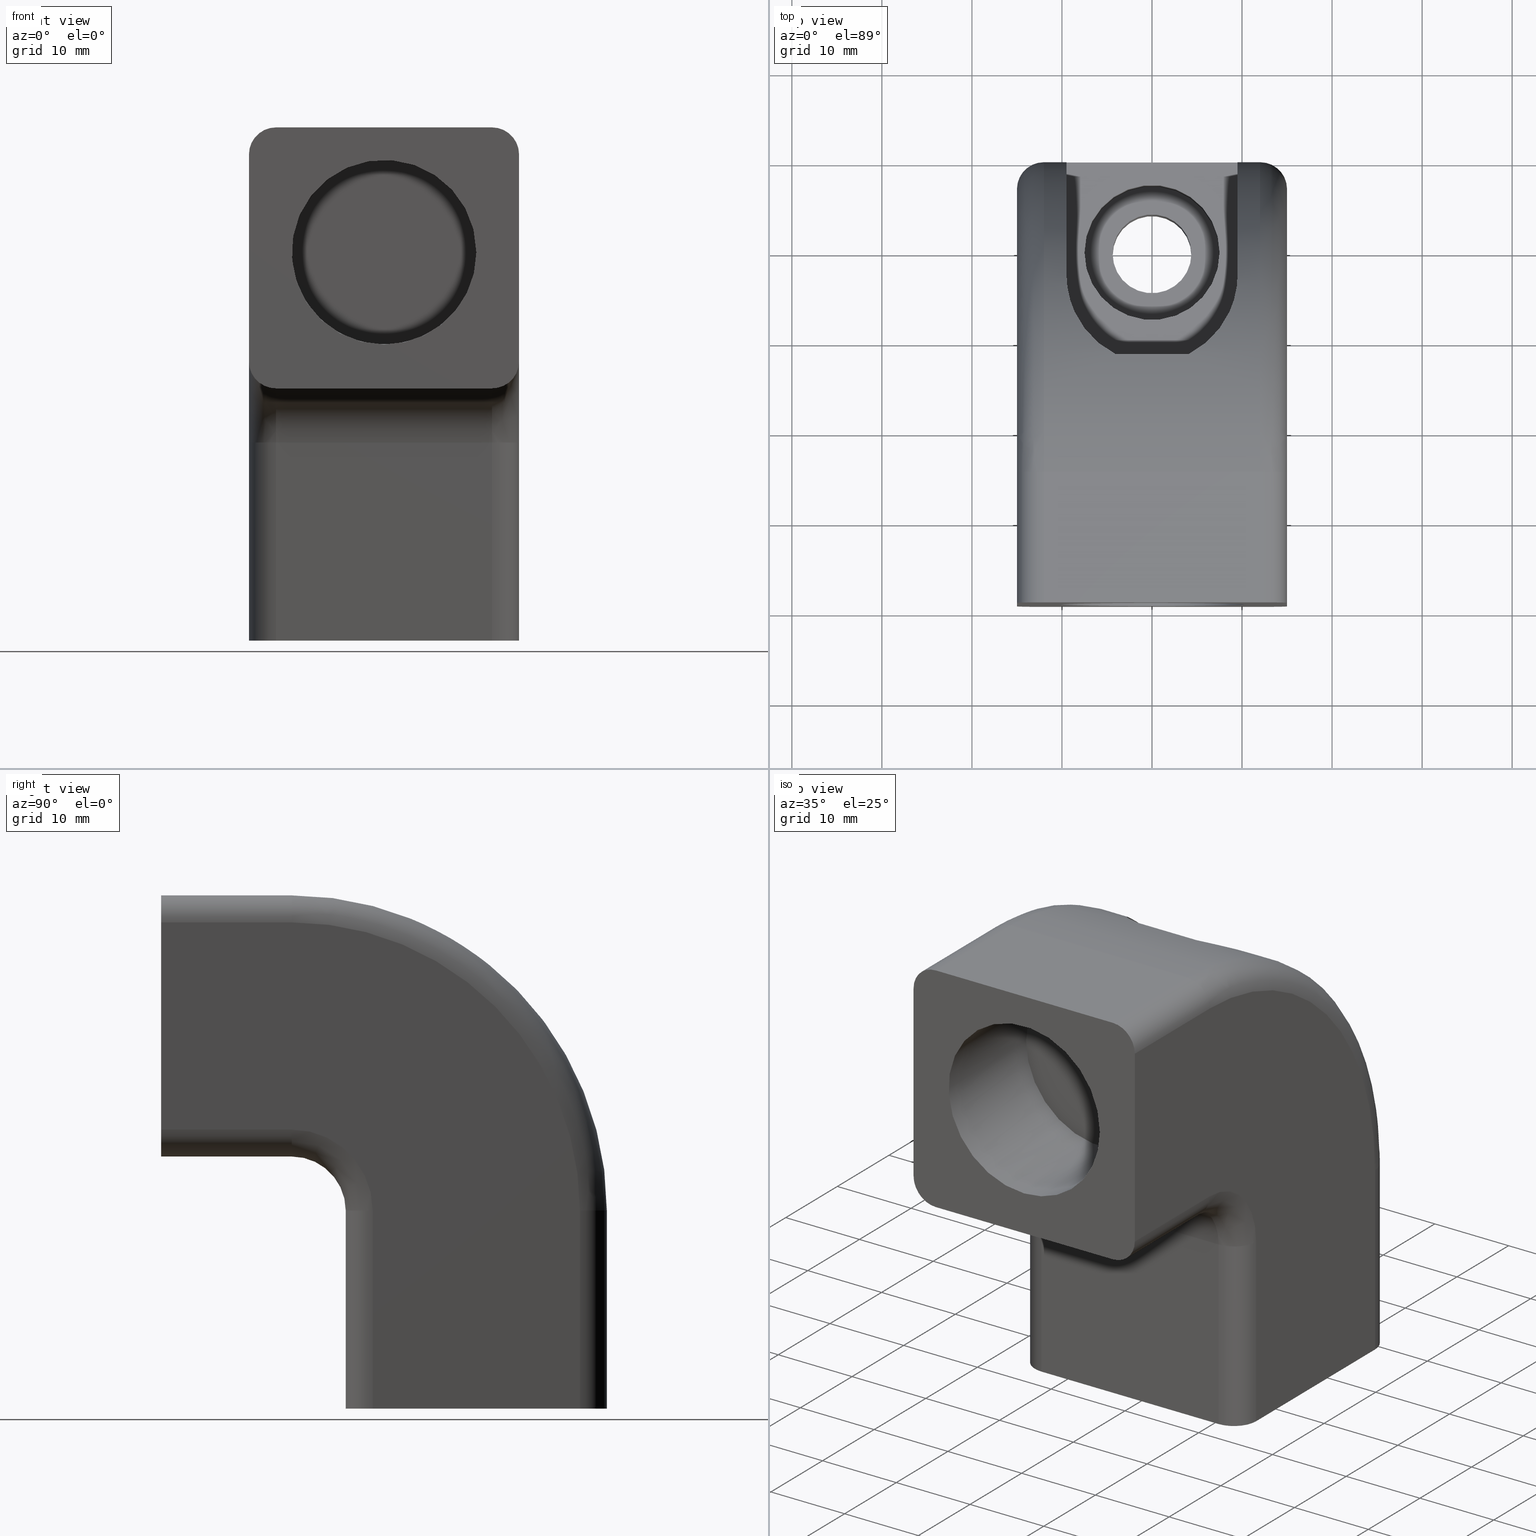
[diagram: canonical four-view strip — front | top / right | iso, engineering-drawing reading convention]
A machine part, canonical four-view strip (front | top / right | iso — engineering-drawing reading convention). The complete STEP part file that produces these views, byte-faithful:
ISO-10303-21;
HEADER;
/* Generated by software containing ST-Developer
 * from STEP Tools, Inc. (www.steptools.com) 
 */

FILE_DESCRIPTION(
/* description */ ('SUPPORTO  MANIGLIA PER TUBO D.20'),
/* implementation_level */ '2;1');

FILE_NAME(
/* name */ 
'Q:\\Catalogo\\2_Accessori Dierre\\Per Download Web\\CATALOGO ACCESSOR
I PER RIPARI\\PAGINA 64\\CMNAA0000002.stp',
/* time_stamp */ '2018-01-31T14:25:36+01:00',
/* author */ ('fzagni'),
/* organization */ (''),
/* preprocessor_version */ 'ST-DEVELOPER v16.1',
/* originating_system */ 'Autodesk Inventor 2016',
/* authorisation */ '');

FILE_SCHEMA (('AUTOMOTIVE_DESIGN { 1 0 10303 214 3 1 1 }'));
ENDSEC;

DATA;
#10=MECHANICAL_DESIGN_GEOMETRIC_PRESENTATION_REPRESENTATION('',(#13),#1311);
#11=SHAPE_REPRESENTATION_RELATIONSHIP('SRR','None',#1320,#12);
#12=ADVANCED_BREP_SHAPE_REPRESENTATION('',(#14),#1310);
#13=STYLED_ITEM('',(#1329),#14);
#14=MANIFOLD_SOLID_BREP('None',#575);
#15=B_SPLINE_SURFACE_WITH_KNOTS('',3,3,((#1000,#1001,#1002,#1003,#1004,
#1005,#1006,#1007,#1008,#1009,#1010),(#1011,#1012,#1013,#1014,#1015,#1016,
#1017,#1018,#1019,#1020,#1021),(#1022,#1023,#1024,#1025,#1026,#1027,#1028,
#1029,#1030,#1031,#1032),(#1033,#1034,#1035,#1036,#1037,#1038,#1039,#1040,
#1041,#1042,#1043),(#1044,#1045,#1046,#1047,#1048,#1049,#1050,#1051,#1052,
#1053,#1054),(#1055,#1056,#1057,#1058,#1059,#1060,#1061,#1062,#1063,#1064,
#1065),(#1066,#1067,#1068,#1069,#1070,#1071,#1072,#1073,#1074,#1075,#1076)),
 .UNSPECIFIED.,.F.,.F.,.F.,(4,1,1,1,4),(4,1,1,1,1,1,1,1,4),(-0.00636065542696376,
1.17054193209677,2.34108386419354,3.51162579629031,4.68216772838708),(-0.00636065542696376,
6.62756652958003,13.2551330591601,19.8826995887401,26.5102661183201,33.1378326479002,
39.7653991774802,46.3929657070602,53.0268928920672),.UNSPECIFIED.);
#16=B_SPLINE_SURFACE_WITH_KNOTS('',3,3,((#1077,#1078,#1079,#1080,#1081,
#1082,#1083,#1084,#1085,#1086,#1087),(#1088,#1089,#1090,#1091,#1092,#1093,
#1094,#1095,#1096,#1097,#1098),(#1099,#1100,#1101,#1102,#1103,#1104,#1105,
#1106,#1107,#1108,#1109),(#1110,#1111,#1112,#1113,#1114,#1115,#1116,#1117,
#1118,#1119,#1120),(#1121,#1122,#1123,#1124,#1125,#1126,#1127,#1128,#1129,
#1130,#1131),(#1132,#1133,#1134,#1135,#1136,#1137,#1138,#1139,#1140,#1141,
#1142),(#1143,#1144,#1145,#1146,#1147,#1148,#1149,#1150,#1151,#1152,#1153)),
 .UNSPECIFIED.,.F.,.F.,.F.,(4,1,1,1,4),(4,1,1,1,1,1,1,1,4),(0.,1.17054193209677,
2.34108386419354,3.51162579629031,4.68216772838708),(0.,1.40983897744393,
2.81967795488786,4.22951693233179,5.63935590977572,7.04919488721965,8.45903386466358,
9.86887284210751,11.2787118195514),.UNSPECIFIED.);
#17=B_SPLINE_SURFACE_WITH_KNOTS('',3,3,((#1154,#1155,#1156,#1157,#1158,
#1159,#1160,#1161,#1162,#1163,#1164),(#1165,#1166,#1167,#1168,#1169,#1170,
#1171,#1172,#1173,#1174,#1175),(#1176,#1177,#1178,#1179,#1180,#1181,#1182,
#1183,#1184,#1185,#1186),(#1187,#1188,#1189,#1190,#1191,#1192,#1193,#1194,
#1195,#1196,#1197),(#1198,#1199,#1200,#1201,#1202,#1203,#1204,#1205,#1206,
#1207,#1208),(#1209,#1210,#1211,#1212,#1213,#1214,#1215,#1216,#1217,#1218,
#1219),(#1220,#1221,#1222,#1223,#1224,#1225,#1226,#1227,#1228,#1229,#1230)),
 .UNSPECIFIED.,.F.,.F.,.F.,(4,1,1,1,4),(4,1,1,1,1,1,1,1,4),(-0.00636065542696376,
1.17054193209677,2.34108386419354,3.51162579629031,4.68216772838708),(-0.00636065542696376,
6.62756652958003,13.2551330591601,19.8826995887401,26.5102661183201,33.1378326479002,
39.7653991774802,46.3929657070602,53.0268928920672),.UNSPECIFIED.);
#18=B_SPLINE_SURFACE_WITH_KNOTS('',3,3,((#1231,#1232,#1233,#1234,#1235,
#1236,#1237,#1238,#1239,#1240,#1241),(#1242,#1243,#1244,#1245,#1246,#1247,
#1248,#1249,#1250,#1251,#1252),(#1253,#1254,#1255,#1256,#1257,#1258,#1259,
#1260,#1261,#1262,#1263),(#1264,#1265,#1266,#1267,#1268,#1269,#1270,#1271,
#1272,#1273,#1274),(#1275,#1276,#1277,#1278,#1279,#1280,#1281,#1282,#1283,
#1284,#1285),(#1286,#1287,#1288,#1289,#1290,#1291,#1292,#1293,#1294,#1295,
#1296),(#1297,#1298,#1299,#1300,#1301,#1302,#1303,#1304,#1305,#1306,#1307)),
 .UNSPECIFIED.,.F.,.F.,.F.,(4,1,1,1,4),(4,1,1,1,1,1,1,1,4),(0.,1.17054193209677,
2.34108386419354,3.51162579629031,4.68216772838708),(0.,1.40983897744393,
2.81967795488786,4.22951693233179,5.63935590977572,7.04919488721965,8.45903386466358,
9.86887284210751,11.2787118195514),.UNSPECIFIED.);
#19=FACE_BOUND('',#161,.T.);
#20=FACE_BOUND('',#166,.T.);
#21=FACE_BOUND('',#168,.T.);
#22=FACE_BOUND('',#170,.T.);
#23=FACE_BOUND('',#172,.T.);
#24=FACE_BOUND('',#175,.T.);
#25=FACE_BOUND('',#177,.T.);
#26=FACE_BOUND('',#180,.T.);
#27=FACE_BOUND('',#181,.T.);
#28=B_SPLINE_CURVE_WITH_KNOTS('',3,(#833,#834,#835,#836,#837,#838,#839,
#840),.UNSPECIFIED.,.F.,.F.,(4,2,2,4),(0.45346056403926,0.742260229767861,
1.19001307839587,1.63776592702387),.UNSPECIFIED.);
#29=B_SPLINE_CURVE_WITH_KNOTS('',3,(#863,#864,#865,#866,#867,#868,#869,
#870),.UNSPECIFIED.,.F.,.F.,(4,2,2,4),(-3.19821510705588,-2.90941544132727,
-2.46166259269927,-2.01390974407126),.UNSPECIFIED.);
#30=LINE('',#831,#68);
#31=LINE('',#844,#69);
#32=LINE('',#849,#70);
#33=LINE('',#852,#71);
#34=LINE('',#856,#72);
#35=LINE('',#857,#73);
#36=LINE('',#862,#74);
#37=LINE('',#873,#75);
#38=LINE('',#877,#76);
#39=LINE('',#900,#77);
#40=LINE('',#904,#78);
#41=LINE('',#908,#79);
#42=LINE('',#912,#80);
#43=LINE('',#918,#81);
#44=LINE('',#919,#82);
#45=LINE('',#923,#83);
#46=LINE('',#927,#84);
#47=LINE('',#931,#85);
#48=LINE('',#935,#86);
#49=LINE('',#939,#87);
#50=LINE('',#942,#88);
#51=LINE('',#945,#89);
#52=LINE('',#947,#90);
#53=LINE('',#951,#91);
#54=LINE('',#954,#92);
#55=LINE('',#957,#93);
#56=LINE('',#959,#94);
#57=LINE('',#963,#95);
#58=LINE('',#966,#96);
#59=LINE('',#971,#97);
#60=LINE('',#972,#98);
#61=LINE('',#975,#99);
#62=LINE('',#978,#100);
#63=LINE('',#983,#101);
#64=LINE('',#985,#102);
#65=LINE('',#990,#103);
#66=LINE('',#991,#104);
#67=LINE('',#994,#105);
#68=VECTOR('',#654,29.2213151776324);
#69=VECTOR('',#657,34.4607605939007);
#70=VECTOR('',#664,8.07270363925181);
#71=VECTOR('',#667,13.);
#72=VECTOR('',#670,13.);
#73=VECTOR('',#671,19.);
#74=VECTOR('',#676,29.2213151776324);
#75=VECTOR('',#679,2.00000000000004);
#76=VECTOR('',#684,2.00000000000004);
#77=VECTOR('',#713,23.);
#78=VECTOR('',#716,24.);
#79=VECTOR('',#719,23.);
#80=VECTOR('',#722,24.);
#81=VECTOR('',#729,14.5);
#82=VECTOR('',#730,14.5);
#83=VECTOR('',#733,23.);
#84=VECTOR('',#736,24.);
#85=VECTOR('',#739,23.);
#86=VECTOR('',#742,24.);
#87=VECTOR('',#747,22.);
#88=VECTOR('',#750,22.);
#89=VECTOR('',#753,22.);
#90=VECTOR('',#754,22.);
#91=VECTOR('',#759,14.5);
#92=VECTOR('',#762,14.5);
#93=VECTOR('',#765,14.5);
#94=VECTOR('',#766,14.5);
#95=VECTOR('',#771,22.);
#96=VECTOR('',#774,22.);
#97=VECTOR('',#779,22.);
#98=VECTOR('',#780,22.);
#99=VECTOR('',#783,14.5);
#100=VECTOR('',#786,14.5);
#101=VECTOR('',#795,24.);
#102=VECTOR('',#798,24.);
#103=VECTOR('',#807,2.50000000000021);
#104=VECTOR('',#808,2.5);
#105=VECTOR('',#813,24.);
#106=CYLINDRICAL_SURFACE('',#579,10.);
#107=CYLINDRICAL_SURFACE('',#587,10.);
#108=CYLINDRICAL_SURFACE('',#592,7.5);
#109=CYLINDRICAL_SURFACE('',#594,4.375);
#110=CYLINDRICAL_SURFACE('',#598,2.25000000000022);
#111=CYLINDRICAL_SURFACE('',#602,10.2500000000002);
#112=CYLINDRICAL_SURFACE('',#609,3.);
#113=CYLINDRICAL_SURFACE('',#616,3.);
#114=CYLINDRICAL_SURFACE('',#618,3.);
#115=CYLINDRICAL_SURFACE('',#620,3.);
#116=CYLINDRICAL_SURFACE('',#622,3.);
#117=CYLINDRICAL_SURFACE('',#624,3.);
#118=CYLINDRICAL_SURFACE('',#626,3.);
#119=CYLINDRICAL_SURFACE('',#628,3.);
#120=CYLINDRICAL_SURFACE('',#634,6.);
#121=CYLINDRICAL_SURFACE('',#639,35.);
#122=FACE_OUTER_BOUND('',#157,.T.);
#123=FACE_OUTER_BOUND('',#158,.T.);
#124=FACE_OUTER_BOUND('',#159,.T.);
#125=FACE_OUTER_BOUND('',#160,.T.);
#126=FACE_OUTER_BOUND('',#162,.T.);
#127=FACE_OUTER_BOUND('',#163,.T.);
#128=FACE_OUTER_BOUND('',#164,.T.);
#129=FACE_OUTER_BOUND('',#165,.T.);
#130=FACE_OUTER_BOUND('',#167,.T.);
#131=FACE_OUTER_BOUND('',#169,.T.);
#132=FACE_OUTER_BOUND('',#171,.T.);
#133=FACE_OUTER_BOUND('',#173,.T.);
#134=FACE_OUTER_BOUND('',#174,.T.);
#135=FACE_OUTER_BOUND('',#176,.T.);
#136=FACE_OUTER_BOUND('',#178,.T.);
#137=FACE_OUTER_BOUND('',#179,.T.);
#138=FACE_OUTER_BOUND('',#182,.T.);
#139=FACE_OUTER_BOUND('',#183,.T.);
#140=FACE_OUTER_BOUND('',#184,.T.);
#141=FACE_OUTER_BOUND('',#185,.T.);
#142=FACE_OUTER_BOUND('',#186,.T.);
#143=FACE_OUTER_BOUND('',#187,.T.);
#144=FACE_OUTER_BOUND('',#188,.T.);
#145=FACE_OUTER_BOUND('',#189,.T.);
#146=FACE_OUTER_BOUND('',#190,.T.);
#147=FACE_OUTER_BOUND('',#191,.T.);
#148=FACE_OUTER_BOUND('',#192,.T.);
#149=FACE_OUTER_BOUND('',#193,.T.);
#150=FACE_OUTER_BOUND('',#194,.T.);
#151=FACE_OUTER_BOUND('',#195,.T.);
#152=FACE_OUTER_BOUND('',#196,.T.);
#153=FACE_OUTER_BOUND('',#197,.T.);
#154=FACE_OUTER_BOUND('',#198,.T.);
#155=FACE_OUTER_BOUND('',#199,.T.);
#156=FACE_OUTER_BOUND('',#200,.T.);
#157=EDGE_LOOP('',(#369));
#158=EDGE_LOOP('',(#370,#371,#372,#373,#374));
#159=EDGE_LOOP('',(#375,#376,#377));
#160=EDGE_LOOP('',(#378,#379,#380,#381,#382));
#161=EDGE_LOOP('',(#383));
#162=EDGE_LOOP('',(#384,#385,#386,#387,#388));
#163=EDGE_LOOP('',(#389,#390,#391,#392));
#164=EDGE_LOOP('',(#393,#394,#395,#396));
#165=EDGE_LOOP('',(#397));
#166=EDGE_LOOP('',(#398));
#167=EDGE_LOOP('',(#399));
#168=EDGE_LOOP('',(#400));
#169=EDGE_LOOP('',(#401));
#170=EDGE_LOOP('',(#402));
#171=EDGE_LOOP('',(#403));
#172=EDGE_LOOP('',(#404));
#173=EDGE_LOOP('',(#405));
#174=EDGE_LOOP('',(#406));
#175=EDGE_LOOP('',(#407));
#176=EDGE_LOOP('',(#408,#409,#410,#411,#412,#413,#414,#415));
#177=EDGE_LOOP('',(#416));
#178=EDGE_LOOP('',(#417,#418,#419,#420));
#179=EDGE_LOOP('',(#421,#422,#423,#424,#425,#426,#427,#428));
#180=EDGE_LOOP('',(#429));
#181=EDGE_LOOP('',(#430));
#182=EDGE_LOOP('',(#431,#432,#433,#434));
#183=EDGE_LOOP('',(#435,#436,#437,#438));
#184=EDGE_LOOP('',(#439,#440,#441,#442));
#185=EDGE_LOOP('',(#443,#444,#445,#446));
#186=EDGE_LOOP('',(#447,#448,#449,#450));
#187=EDGE_LOOP('',(#451,#452,#453,#454));
#188=EDGE_LOOP('',(#455,#456,#457,#458));
#189=EDGE_LOOP('',(#459,#460,#461,#462,#463,#464,#465,#466));
#190=EDGE_LOOP('',(#467,#468,#469,#470));
#191=EDGE_LOOP('',(#471,#472,#473,#474));
#192=EDGE_LOOP('',(#475,#476,#477,#478));
#193=EDGE_LOOP('',(#479,#480,#481,#482,#483,#484,#485,#486));
#194=EDGE_LOOP('',(#487,#488,#489,#490,#491,#492,#493,#494,#495,#496));
#195=EDGE_LOOP('',(#497,#498,#499,#500));
#196=EDGE_LOOP('',(#501,#502,#503,#504,#505,#506,#507,#508));
#197=EDGE_LOOP('',(#509,#510,#511,#512));
#198=EDGE_LOOP('',(#513,#514,#515,#516));
#199=EDGE_LOOP('',(#517,#518,#519,#520));
#200=EDGE_LOOP('',(#521,#522,#523,#524));
#201=CIRCLE('',#578,10.2500000000002);
#202=CIRCLE('',#580,10.);
#203=CIRCLE('',#581,10.);
#204=CIRCLE('',#583,10.);
#205=CIRCLE('',#585,10.);
#206=CIRCLE('',#586,7.5);
#207=CIRCLE('',#589,35.);
#208=CIRCLE('',#591,35.);
#209=CIRCLE('',#593,7.5);
#210=CIRCLE('',#595,4.375);
#211=CIRCLE('',#596,4.375);
#212=CIRCLE('',#599,2.25000000000022);
#213=CIRCLE('',#600,2.25000000000022);
#214=CIRCLE('',#603,10.2500000000002);
#215=CIRCLE('',#605,3.);
#216=CIRCLE('',#606,3.);
#217=CIRCLE('',#607,3.);
#218=CIRCLE('',#608,3.);
#219=CIRCLE('',#610,3.);
#220=CIRCLE('',#612,3.);
#221=CIRCLE('',#613,3.);
#222=CIRCLE('',#614,3.);
#223=CIRCLE('',#615,3.);
#224=CIRCLE('',#617,3.);
#225=CIRCLE('',#619,3.);
#226=CIRCLE('',#621,3.);
#227=CIRCLE('',#623,3.);
#228=CIRCLE('',#625,3.);
#229=CIRCLE('',#627,3.);
#230=CIRCLE('',#629,3.);
#231=CIRCLE('',#631,9.);
#232=CIRCLE('',#632,32.);
#233=CIRCLE('',#635,6.);
#234=CIRCLE('',#636,6.);
#235=CIRCLE('',#640,35.);
#236=CIRCLE('',#641,35.);
#237=CIRCLE('',#644,32.);
#238=CIRCLE('',#645,9.);
#239=VERTEX_POINT('',#826);
#240=VERTEX_POINT('',#829);
#241=VERTEX_POINT('',#830);
#242=VERTEX_POINT('',#832);
#243=VERTEX_POINT('',#841);
#244=VERTEX_POINT('',#843);
#245=VERTEX_POINT('',#847);
#246=VERTEX_POINT('',#851);
#247=VERTEX_POINT('',#853);
#248=VERTEX_POINT('',#855);
#249=VERTEX_POINT('',#858);
#250=VERTEX_POINT('',#861);
#251=VERTEX_POINT('',#872);
#252=VERTEX_POINT('',#876);
#253=VERTEX_POINT('',#880);
#254=VERTEX_POINT('',#883);
#255=VERTEX_POINT('',#885);
#256=VERTEX_POINT('',#889);
#257=VERTEX_POINT('',#891);
#258=VERTEX_POINT('',#895);
#259=VERTEX_POINT('',#898);
#260=VERTEX_POINT('',#899);
#261=VERTEX_POINT('',#901);
#262=VERTEX_POINT('',#903);
#263=VERTEX_POINT('',#905);
#264=VERTEX_POINT('',#907);
#265=VERTEX_POINT('',#909);
#266=VERTEX_POINT('',#911);
#267=VERTEX_POINT('',#915);
#268=VERTEX_POINT('',#916);
#269=VERTEX_POINT('',#921);
#270=VERTEX_POINT('',#922);
#271=VERTEX_POINT('',#924);
#272=VERTEX_POINT('',#926);
#273=VERTEX_POINT('',#928);
#274=VERTEX_POINT('',#930);
#275=VERTEX_POINT('',#932);
#276=VERTEX_POINT('',#934);
#277=VERTEX_POINT('',#938);
#278=VERTEX_POINT('',#940);
#279=VERTEX_POINT('',#944);
#280=VERTEX_POINT('',#946);
#281=VERTEX_POINT('',#950);
#282=VERTEX_POINT('',#952);
#283=VERTEX_POINT('',#956);
#284=VERTEX_POINT('',#958);
#285=VERTEX_POINT('',#962);
#286=VERTEX_POINT('',#964);
#287=VERTEX_POINT('',#968);
#288=VERTEX_POINT('',#969);
#289=VERTEX_POINT('',#974);
#290=VERTEX_POINT('',#976);
#291=EDGE_CURVE('',#239,#239,#201,.T.);
#292=EDGE_CURVE('',#240,#241,#30,.T.);
#293=EDGE_CURVE('',#242,#241,#28,.T.);
#294=EDGE_CURVE('',#243,#242,#202,.T.);
#295=EDGE_CURVE('',#244,#243,#31,.T.);
#296=EDGE_CURVE('',#244,#240,#203,.T.);
#297=EDGE_CURVE('',#243,#245,#204,.T.);
#298=EDGE_CURVE('',#245,#242,#32,.T.);
#299=EDGE_CURVE('',#246,#240,#33,.T.);
#300=EDGE_CURVE('',#244,#247,#205,.T.);
#301=EDGE_CURVE('',#248,#247,#34,.T.);
#302=EDGE_CURVE('',#248,#246,#35,.T.);
#303=EDGE_CURVE('',#249,#249,#206,.T.);
#304=EDGE_CURVE('',#250,#247,#36,.T.);
#305=EDGE_CURVE('',#245,#250,#29,.T.);
#306=EDGE_CURVE('',#246,#251,#37,.T.);
#307=EDGE_CURVE('',#241,#251,#207,.T.);
#308=EDGE_CURVE('',#252,#248,#38,.T.);
#309=EDGE_CURVE('',#252,#250,#208,.T.);
#310=EDGE_CURVE('',#253,#253,#209,.T.);
#311=EDGE_CURVE('',#254,#254,#210,.T.);
#312=EDGE_CURVE('',#255,#255,#211,.T.);
#313=EDGE_CURVE('',#256,#256,#212,.T.);
#314=EDGE_CURVE('',#257,#257,#213,.T.);
#315=EDGE_CURVE('',#258,#258,#214,.T.);
#316=EDGE_CURVE('',#259,#260,#39,.T.);
#317=EDGE_CURVE('',#261,#260,#215,.T.);
#318=EDGE_CURVE('',#261,#262,#40,.T.);
#319=EDGE_CURVE('',#262,#263,#216,.T.);
#320=EDGE_CURVE('',#264,#263,#41,.T.);
#321=EDGE_CURVE('',#265,#264,#217,.T.);
#322=EDGE_CURVE('',#266,#265,#42,.T.);
#323=EDGE_CURVE('',#266,#259,#218,.T.);
#324=EDGE_CURVE('',#267,#268,#219,.T.);
#325=EDGE_CURVE('',#268,#259,#43,.T.);
#326=EDGE_CURVE('',#267,#266,#44,.T.);
#327=EDGE_CURVE('',#269,#270,#45,.T.);
#328=EDGE_CURVE('',#271,#270,#220,.T.);
#329=EDGE_CURVE('',#271,#272,#46,.T.);
#330=EDGE_CURVE('',#272,#273,#221,.T.);
#331=EDGE_CURVE('',#274,#273,#47,.T.);
#332=EDGE_CURVE('',#274,#275,#222,.T.);
#333=EDGE_CURVE('',#276,#275,#48,.T.);
#334=EDGE_CURVE('',#269,#276,#223,.T.);
#335=EDGE_CURVE('',#270,#277,#49,.T.);
#336=EDGE_CURVE('',#278,#277,#224,.T.);
#337=EDGE_CURVE('',#271,#278,#50,.T.);
#338=EDGE_CURVE('',#279,#269,#51,.T.);
#339=EDGE_CURVE('',#280,#276,#52,.T.);
#340=EDGE_CURVE('',#279,#280,#225,.T.);
#341=EDGE_CURVE('',#260,#281,#53,.T.);
#342=EDGE_CURVE('',#281,#282,#226,.T.);
#343=EDGE_CURVE('',#261,#282,#54,.T.);
#344=EDGE_CURVE('',#283,#265,#55,.T.);
#345=EDGE_CURVE('',#284,#264,#56,.T.);
#346=EDGE_CURVE('',#283,#284,#227,.T.);
#347=EDGE_CURVE('',#272,#285,#57,.T.);
#348=EDGE_CURVE('',#285,#286,#228,.T.);
#349=EDGE_CURVE('',#273,#286,#58,.T.);
#350=EDGE_CURVE('',#287,#288,#229,.T.);
#351=EDGE_CURVE('',#288,#275,#59,.T.);
#352=EDGE_CURVE('',#287,#274,#60,.T.);
#353=EDGE_CURVE('',#262,#289,#61,.T.);
#354=EDGE_CURVE('',#290,#289,#230,.T.);
#355=EDGE_CURVE('',#263,#290,#62,.T.);
#356=EDGE_CURVE('',#277,#268,#231,.T.);
#357=EDGE_CURVE('',#281,#279,#232,.T.);
#358=EDGE_CURVE('',#267,#283,#63,.T.);
#359=EDGE_CURVE('',#278,#285,#64,.T.);
#360=EDGE_CURVE('',#278,#267,#233,.T.);
#361=EDGE_CURVE('',#285,#283,#234,.T.);
#362=EDGE_CURVE('',#280,#252,#65,.T.);
#363=EDGE_CURVE('',#251,#288,#66,.T.);
#364=EDGE_CURVE('',#289,#288,#235,.T.);
#365=EDGE_CURVE('',#282,#289,#67,.T.);
#366=EDGE_CURVE('',#282,#280,#236,.T.);
#367=EDGE_CURVE('',#290,#287,#237,.T.);
#368=EDGE_CURVE('',#286,#284,#238,.T.);
#369=ORIENTED_EDGE('',*,*,#291,.F.);
#370=ORIENTED_EDGE('',*,*,#292,.T.);
#371=ORIENTED_EDGE('',*,*,#293,.F.);
#372=ORIENTED_EDGE('',*,*,#294,.F.);
#373=ORIENTED_EDGE('',*,*,#295,.F.);
#374=ORIENTED_EDGE('',*,*,#296,.T.);
#375=ORIENTED_EDGE('',*,*,#297,.F.);
#376=ORIENTED_EDGE('',*,*,#294,.T.);
#377=ORIENTED_EDGE('',*,*,#298,.F.);
#378=ORIENTED_EDGE('',*,*,#299,.T.);
#379=ORIENTED_EDGE('',*,*,#296,.F.);
#380=ORIENTED_EDGE('',*,*,#300,.T.);
#381=ORIENTED_EDGE('',*,*,#301,.F.);
#382=ORIENTED_EDGE('',*,*,#302,.T.);
#383=ORIENTED_EDGE('',*,*,#303,.F.);
#384=ORIENTED_EDGE('',*,*,#304,.T.);
#385=ORIENTED_EDGE('',*,*,#300,.F.);
#386=ORIENTED_EDGE('',*,*,#295,.T.);
#387=ORIENTED_EDGE('',*,*,#297,.T.);
#388=ORIENTED_EDGE('',*,*,#305,.T.);
#389=ORIENTED_EDGE('',*,*,#306,.T.);
#390=ORIENTED_EDGE('',*,*,#307,.F.);
#391=ORIENTED_EDGE('',*,*,#292,.F.);
#392=ORIENTED_EDGE('',*,*,#299,.F.);
#393=ORIENTED_EDGE('',*,*,#308,.T.);
#394=ORIENTED_EDGE('',*,*,#301,.T.);
#395=ORIENTED_EDGE('',*,*,#304,.F.);
#396=ORIENTED_EDGE('',*,*,#309,.F.);
#397=ORIENTED_EDGE('',*,*,#303,.T.);
#398=ORIENTED_EDGE('',*,*,#310,.F.);
#399=ORIENTED_EDGE('',*,*,#311,.T.);
#400=ORIENTED_EDGE('',*,*,#312,.T.);
#401=ORIENTED_EDGE('',*,*,#310,.T.);
#402=ORIENTED_EDGE('',*,*,#312,.F.);
#403=ORIENTED_EDGE('',*,*,#313,.T.);
#404=ORIENTED_EDGE('',*,*,#314,.F.);
#405=ORIENTED_EDGE('',*,*,#314,.T.);
#406=ORIENTED_EDGE('',*,*,#291,.T.);
#407=ORIENTED_EDGE('',*,*,#315,.T.);
#408=ORIENTED_EDGE('',*,*,#316,.T.);
#409=ORIENTED_EDGE('',*,*,#317,.F.);
#410=ORIENTED_EDGE('',*,*,#318,.T.);
#411=ORIENTED_EDGE('',*,*,#319,.T.);
#412=ORIENTED_EDGE('',*,*,#320,.F.);
#413=ORIENTED_EDGE('',*,*,#321,.F.);
#414=ORIENTED_EDGE('',*,*,#322,.F.);
#415=ORIENTED_EDGE('',*,*,#323,.T.);
#416=ORIENTED_EDGE('',*,*,#315,.F.);
#417=ORIENTED_EDGE('',*,*,#324,.T.);
#418=ORIENTED_EDGE('',*,*,#325,.T.);
#419=ORIENTED_EDGE('',*,*,#323,.F.);
#420=ORIENTED_EDGE('',*,*,#326,.F.);
#421=ORIENTED_EDGE('',*,*,#327,.T.);
#422=ORIENTED_EDGE('',*,*,#328,.F.);
#423=ORIENTED_EDGE('',*,*,#329,.T.);
#424=ORIENTED_EDGE('',*,*,#330,.T.);
#425=ORIENTED_EDGE('',*,*,#331,.F.);
#426=ORIENTED_EDGE('',*,*,#332,.T.);
#427=ORIENTED_EDGE('',*,*,#333,.F.);
#428=ORIENTED_EDGE('',*,*,#334,.F.);
#429=ORIENTED_EDGE('',*,*,#313,.F.);
#430=ORIENTED_EDGE('',*,*,#311,.F.);
#431=ORIENTED_EDGE('',*,*,#328,.T.);
#432=ORIENTED_EDGE('',*,*,#335,.T.);
#433=ORIENTED_EDGE('',*,*,#336,.F.);
#434=ORIENTED_EDGE('',*,*,#337,.F.);
#435=ORIENTED_EDGE('',*,*,#338,.T.);
#436=ORIENTED_EDGE('',*,*,#334,.T.);
#437=ORIENTED_EDGE('',*,*,#339,.F.);
#438=ORIENTED_EDGE('',*,*,#340,.F.);
#439=ORIENTED_EDGE('',*,*,#317,.T.);
#440=ORIENTED_EDGE('',*,*,#341,.T.);
#441=ORIENTED_EDGE('',*,*,#342,.T.);
#442=ORIENTED_EDGE('',*,*,#343,.F.);
#443=ORIENTED_EDGE('',*,*,#344,.T.);
#444=ORIENTED_EDGE('',*,*,#321,.T.);
#445=ORIENTED_EDGE('',*,*,#345,.F.);
#446=ORIENTED_EDGE('',*,*,#346,.F.);
#447=ORIENTED_EDGE('',*,*,#347,.T.);
#448=ORIENTED_EDGE('',*,*,#348,.T.);
#449=ORIENTED_EDGE('',*,*,#349,.F.);
#450=ORIENTED_EDGE('',*,*,#330,.F.);
#451=ORIENTED_EDGE('',*,*,#350,.T.);
#452=ORIENTED_EDGE('',*,*,#351,.T.);
#453=ORIENTED_EDGE('',*,*,#332,.F.);
#454=ORIENTED_EDGE('',*,*,#352,.F.);
#455=ORIENTED_EDGE('',*,*,#353,.T.);
#456=ORIENTED_EDGE('',*,*,#354,.F.);
#457=ORIENTED_EDGE('',*,*,#355,.F.);
#458=ORIENTED_EDGE('',*,*,#319,.F.);
#459=ORIENTED_EDGE('',*,*,#316,.F.);
#460=ORIENTED_EDGE('',*,*,#325,.F.);
#461=ORIENTED_EDGE('',*,*,#356,.F.);
#462=ORIENTED_EDGE('',*,*,#335,.F.);
#463=ORIENTED_EDGE('',*,*,#327,.F.);
#464=ORIENTED_EDGE('',*,*,#338,.F.);
#465=ORIENTED_EDGE('',*,*,#357,.F.);
#466=ORIENTED_EDGE('',*,*,#341,.F.);
#467=ORIENTED_EDGE('',*,*,#358,.F.);
#468=ORIENTED_EDGE('',*,*,#326,.T.);
#469=ORIENTED_EDGE('',*,*,#322,.T.);
#470=ORIENTED_EDGE('',*,*,#344,.F.);
#471=ORIENTED_EDGE('',*,*,#359,.F.);
#472=ORIENTED_EDGE('',*,*,#360,.T.);
#473=ORIENTED_EDGE('',*,*,#358,.T.);
#474=ORIENTED_EDGE('',*,*,#361,.F.);
#475=ORIENTED_EDGE('',*,*,#329,.F.);
#476=ORIENTED_EDGE('',*,*,#337,.T.);
#477=ORIENTED_EDGE('',*,*,#359,.T.);
#478=ORIENTED_EDGE('',*,*,#347,.F.);
#479=ORIENTED_EDGE('',*,*,#302,.F.);
#480=ORIENTED_EDGE('',*,*,#308,.F.);
#481=ORIENTED_EDGE('',*,*,#362,.F.);
#482=ORIENTED_EDGE('',*,*,#339,.T.);
#483=ORIENTED_EDGE('',*,*,#333,.T.);
#484=ORIENTED_EDGE('',*,*,#351,.F.);
#485=ORIENTED_EDGE('',*,*,#363,.F.);
#486=ORIENTED_EDGE('',*,*,#306,.F.);
#487=ORIENTED_EDGE('',*,*,#309,.T.);
#488=ORIENTED_EDGE('',*,*,#305,.F.);
#489=ORIENTED_EDGE('',*,*,#298,.T.);
#490=ORIENTED_EDGE('',*,*,#293,.T.);
#491=ORIENTED_EDGE('',*,*,#307,.T.);
#492=ORIENTED_EDGE('',*,*,#363,.T.);
#493=ORIENTED_EDGE('',*,*,#364,.F.);
#494=ORIENTED_EDGE('',*,*,#365,.F.);
#495=ORIENTED_EDGE('',*,*,#366,.T.);
#496=ORIENTED_EDGE('',*,*,#362,.T.);
#497=ORIENTED_EDGE('',*,*,#318,.F.);
#498=ORIENTED_EDGE('',*,*,#343,.T.);
#499=ORIENTED_EDGE('',*,*,#365,.T.);
#500=ORIENTED_EDGE('',*,*,#353,.F.);
#501=ORIENTED_EDGE('',*,*,#355,.T.);
#502=ORIENTED_EDGE('',*,*,#367,.T.);
#503=ORIENTED_EDGE('',*,*,#352,.T.);
#504=ORIENTED_EDGE('',*,*,#331,.T.);
#505=ORIENTED_EDGE('',*,*,#349,.T.);
#506=ORIENTED_EDGE('',*,*,#368,.T.);
#507=ORIENTED_EDGE('',*,*,#345,.T.);
#508=ORIENTED_EDGE('',*,*,#320,.T.);
#509=ORIENTED_EDGE('',*,*,#354,.T.);
#510=ORIENTED_EDGE('',*,*,#364,.T.);
#511=ORIENTED_EDGE('',*,*,#350,.F.);
#512=ORIENTED_EDGE('',*,*,#367,.F.);
#513=ORIENTED_EDGE('',*,*,#361,.T.);
#514=ORIENTED_EDGE('',*,*,#346,.T.);
#515=ORIENTED_EDGE('',*,*,#368,.F.);
#516=ORIENTED_EDGE('',*,*,#348,.F.);
#517=ORIENTED_EDGE('',*,*,#357,.T.);
#518=ORIENTED_EDGE('',*,*,#340,.T.);
#519=ORIENTED_EDGE('',*,*,#366,.F.);
#520=ORIENTED_EDGE('',*,*,#342,.F.);
#521=ORIENTED_EDGE('',*,*,#336,.T.);
#522=ORIENTED_EDGE('',*,*,#356,.T.);
#523=ORIENTED_EDGE('',*,*,#324,.F.);
#524=ORIENTED_EDGE('',*,*,#360,.F.);
#525=PLANE('',#577);
#526=PLANE('',#582);
#527=PLANE('',#584);
#528=PLANE('',#588);
#529=PLANE('',#590);
#530=PLANE('',#597);
#531=PLANE('',#601);
#532=PLANE('',#604);
#533=PLANE('',#611);
#534=PLANE('',#630);
#535=PLANE('',#633);
#536=PLANE('',#637);
#537=PLANE('',#638);
#538=PLANE('',#642);
#539=PLANE('',#643);
#540=ADVANCED_FACE('',(#122),#525,.F.);
#541=ADVANCED_FACE('',(#123),#106,.F.);
#542=ADVANCED_FACE('',(#124),#526,.T.);
#543=ADVANCED_FACE('',(#125,#19),#527,.T.);
#544=ADVANCED_FACE('',(#126),#107,.F.);
#545=ADVANCED_FACE('',(#127),#528,.T.);
#546=ADVANCED_FACE('',(#128),#529,.T.);
#547=ADVANCED_FACE('',(#129,#20),#108,.F.);
#548=ADVANCED_FACE('',(#130,#21),#109,.F.);
#549=ADVANCED_FACE('',(#131,#22),#530,.F.);
#550=ADVANCED_FACE('',(#132,#23),#110,.F.);
#551=ADVANCED_FACE('',(#133),#531,.T.);
#552=ADVANCED_FACE('',(#134,#24),#111,.F.);
#553=ADVANCED_FACE('',(#135,#25),#532,.T.);
#554=ADVANCED_FACE('',(#136),#112,.T.);
#555=ADVANCED_FACE('',(#137,#26,#27),#533,.T.);
#556=ADVANCED_FACE('',(#138),#113,.T.);
#557=ADVANCED_FACE('',(#139),#114,.T.);
#558=ADVANCED_FACE('',(#140),#115,.T.);
#559=ADVANCED_FACE('',(#141),#116,.T.);
#560=ADVANCED_FACE('',(#142),#117,.T.);
#561=ADVANCED_FACE('',(#143),#118,.T.);
#562=ADVANCED_FACE('',(#144),#119,.T.);
#563=ADVANCED_FACE('',(#145),#534,.F.);
#564=ADVANCED_FACE('',(#146),#535,.T.);
#565=ADVANCED_FACE('',(#147),#120,.F.);
#566=ADVANCED_FACE('',(#148),#536,.T.);
#567=ADVANCED_FACE('',(#149),#537,.T.);
#568=ADVANCED_FACE('',(#150),#121,.T.);
#569=ADVANCED_FACE('',(#151),#538,.T.);
#570=ADVANCED_FACE('',(#152),#539,.T.);
#571=ADVANCED_FACE('',(#153),#15,.T.);
#572=ADVANCED_FACE('',(#154),#16,.F.);
#573=ADVANCED_FACE('',(#155),#17,.F.);
#574=ADVANCED_FACE('',(#156),#18,.T.);
#575=CLOSED_SHELL('',(#540,#541,#542,#543,#544,#545,#546,#547,#548,#549,
#550,#551,#552,#553,#554,#555,#556,#557,#558,#559,#560,#561,#562,#563,#564,
#565,#566,#567,#568,#569,#570,#571,#572,#573,#574));
#576=AXIS2_PLACEMENT_3D('placement',#824,#646,#647);
#577=AXIS2_PLACEMENT_3D('',#825,#648,#649);
#578=AXIS2_PLACEMENT_3D('',#827,#650,#651);
#579=AXIS2_PLACEMENT_3D('',#828,#652,#653);
#580=AXIS2_PLACEMENT_3D('',#842,#655,#656);
#581=AXIS2_PLACEMENT_3D('',#845,#658,#659);
#582=AXIS2_PLACEMENT_3D('',#846,#660,#661);
#583=AXIS2_PLACEMENT_3D('',#848,#662,#663);
#584=AXIS2_PLACEMENT_3D('',#850,#665,#666);
#585=AXIS2_PLACEMENT_3D('',#854,#668,#669);
#586=AXIS2_PLACEMENT_3D('',#859,#672,#673);
#587=AXIS2_PLACEMENT_3D('',#860,#674,#675);
#588=AXIS2_PLACEMENT_3D('',#871,#677,#678);
#589=AXIS2_PLACEMENT_3D('',#874,#680,#681);
#590=AXIS2_PLACEMENT_3D('',#875,#682,#683);
#591=AXIS2_PLACEMENT_3D('',#878,#685,#686);
#592=AXIS2_PLACEMENT_3D('',#879,#687,#688);
#593=AXIS2_PLACEMENT_3D('',#881,#689,#690);
#594=AXIS2_PLACEMENT_3D('',#882,#691,#692);
#595=AXIS2_PLACEMENT_3D('',#884,#693,#694);
#596=AXIS2_PLACEMENT_3D('',#886,#695,#696);
#597=AXIS2_PLACEMENT_3D('',#887,#697,#698);
#598=AXIS2_PLACEMENT_3D('',#888,#699,#700);
#599=AXIS2_PLACEMENT_3D('',#890,#701,#702);
#600=AXIS2_PLACEMENT_3D('',#892,#703,#704);
#601=AXIS2_PLACEMENT_3D('',#893,#705,#706);
#602=AXIS2_PLACEMENT_3D('',#894,#707,#708);
#603=AXIS2_PLACEMENT_3D('',#896,#709,#710);
#604=AXIS2_PLACEMENT_3D('',#897,#711,#712);
#605=AXIS2_PLACEMENT_3D('',#902,#714,#715);
#606=AXIS2_PLACEMENT_3D('',#906,#717,#718);
#607=AXIS2_PLACEMENT_3D('',#910,#720,#721);
#608=AXIS2_PLACEMENT_3D('',#913,#723,#724);
#609=AXIS2_PLACEMENT_3D('',#914,#725,#726);
#610=AXIS2_PLACEMENT_3D('',#917,#727,#728);
#611=AXIS2_PLACEMENT_3D('',#920,#731,#732);
#612=AXIS2_PLACEMENT_3D('',#925,#734,#735);
#613=AXIS2_PLACEMENT_3D('',#929,#737,#738);
#614=AXIS2_PLACEMENT_3D('',#933,#740,#741);
#615=AXIS2_PLACEMENT_3D('',#936,#743,#744);
#616=AXIS2_PLACEMENT_3D('',#937,#745,#746);
#617=AXIS2_PLACEMENT_3D('',#941,#748,#749);
#618=AXIS2_PLACEMENT_3D('',#943,#751,#752);
#619=AXIS2_PLACEMENT_3D('',#948,#755,#756);
#620=AXIS2_PLACEMENT_3D('',#949,#757,#758);
#621=AXIS2_PLACEMENT_3D('',#953,#760,#761);
#622=AXIS2_PLACEMENT_3D('',#955,#763,#764);
#623=AXIS2_PLACEMENT_3D('',#960,#767,#768);
#624=AXIS2_PLACEMENT_3D('',#961,#769,#770);
#625=AXIS2_PLACEMENT_3D('',#965,#772,#773);
#626=AXIS2_PLACEMENT_3D('',#967,#775,#776);
#627=AXIS2_PLACEMENT_3D('',#970,#777,#778);
#628=AXIS2_PLACEMENT_3D('',#973,#781,#782);
#629=AXIS2_PLACEMENT_3D('',#977,#784,#785);
#630=AXIS2_PLACEMENT_3D('',#979,#787,#788);
#631=AXIS2_PLACEMENT_3D('',#980,#789,#790);
#632=AXIS2_PLACEMENT_3D('',#981,#791,#792);
#633=AXIS2_PLACEMENT_3D('',#982,#793,#794);
#634=AXIS2_PLACEMENT_3D('',#984,#796,#797);
#635=AXIS2_PLACEMENT_3D('',#986,#799,#800);
#636=AXIS2_PLACEMENT_3D('',#987,#801,#802);
#637=AXIS2_PLACEMENT_3D('',#988,#803,#804);
#638=AXIS2_PLACEMENT_3D('',#989,#805,#806);
#639=AXIS2_PLACEMENT_3D('',#992,#809,#810);
#640=AXIS2_PLACEMENT_3D('',#993,#811,#812);
#641=AXIS2_PLACEMENT_3D('',#995,#814,#815);
#642=AXIS2_PLACEMENT_3D('',#996,#816,#817);
#643=AXIS2_PLACEMENT_3D('',#997,#818,#819);
#644=AXIS2_PLACEMENT_3D('',#998,#820,#821);
#645=AXIS2_PLACEMENT_3D('',#999,#822,#823);
#646=DIRECTION('axis',(0.,0.,1.));
#647=DIRECTION('refdir',(1.,0.,0.));
#648=DIRECTION('center_axis',(0.,1.,0.));
#649=DIRECTION('ref_axis',(0.,0.,1.));
#650=DIRECTION('center_axis',(0.,1.,0.));
#651=DIRECTION('ref_axis',(-1.,0.,0.));
#652=DIRECTION('center_axis',(0.,0.,-1.));
#653=DIRECTION('ref_axis',(0.,-1.,0.));
#654=DIRECTION('',(0.,0.,1.));
#655=DIRECTION('center_axis',(0.,0.,-1.));
#656=DIRECTION('ref_axis',(0.,-1.,0.));
#657=DIRECTION('',(0.,0.,1.));
#658=DIRECTION('center_axis',(0.,0.,-1.));
#659=DIRECTION('ref_axis',(0.,-1.,0.));
#660=DIRECTION('center_axis',(0.,0.,-1.));
#661=DIRECTION('ref_axis',(-1.,0.,0.));
#662=DIRECTION('center_axis',(0.,0.,1.));
#663=DIRECTION('ref_axis',(0.,-1.,0.));
#664=DIRECTION('',(-1.,0.,0.));
#665=DIRECTION('center_axis',(0.,0.,1.));
#666=DIRECTION('ref_axis',(1.,0.,0.));
#667=DIRECTION('',(0.,-1.,0.));
#668=DIRECTION('center_axis',(0.,0.,1.));
#669=DIRECTION('ref_axis',(0.,-1.,0.));
#670=DIRECTION('',(0.,-1.,0.));
#671=DIRECTION('',(-1.,0.,0.));
#672=DIRECTION('center_axis',(0.,0.,1.));
#673=DIRECTION('ref_axis',(-1.,0.,0.));
#674=DIRECTION('center_axis',(0.,0.,1.));
#675=DIRECTION('ref_axis',(0.,-1.,0.));
#676=DIRECTION('',(0.,0.,-1.));
#677=DIRECTION('center_axis',(1.,0.,0.));
#678=DIRECTION('ref_axis',(0.,0.,-1.));
#679=DIRECTION('',(0.,0.,1.));
#680=DIRECTION('center_axis',(-1.,0.,0.));
#681=DIRECTION('ref_axis',(0.,-1.,0.));
#682=DIRECTION('center_axis',(-1.,0.,0.));
#683=DIRECTION('ref_axis',(0.,0.,1.));
#684=DIRECTION('',(0.,0.,-1.));
#685=DIRECTION('center_axis',(1.,0.,0.));
#686=DIRECTION('ref_axis',(0.,-1.,0.));
#687=DIRECTION('center_axis',(0.,0.,1.));
#688=DIRECTION('ref_axis',(-1.,0.,0.));
#689=DIRECTION('center_axis',(0.,0.,1.));
#690=DIRECTION('ref_axis',(-1.,0.,0.));
#691=DIRECTION('center_axis',(0.,0.,1.));
#692=DIRECTION('ref_axis',(-1.,0.,0.));
#693=DIRECTION('center_axis',(0.,0.,-1.));
#694=DIRECTION('ref_axis',(-1.,0.,0.));
#695=DIRECTION('center_axis',(0.,0.,1.));
#696=DIRECTION('ref_axis',(-1.,0.,0.));
#697=DIRECTION('center_axis',(0.,0.,-1.));
#698=DIRECTION('ref_axis',(-1.,0.,0.));
#699=DIRECTION('center_axis',(0.,0.,-1.));
#700=DIRECTION('ref_axis',(0.,-1.,0.));
#701=DIRECTION('center_axis',(0.,0.,-1.));
#702=DIRECTION('ref_axis',(0.,-1.,0.));
#703=DIRECTION('center_axis',(0.,0.,-1.));
#704=DIRECTION('ref_axis',(0.,-1.,0.));
#705=DIRECTION('center_axis',(0.,0.,-1.));
#706=DIRECTION('ref_axis',(-1.,0.,0.));
#707=DIRECTION('center_axis',(0.,-1.,0.));
#708=DIRECTION('ref_axis',(0.,0.,1.));
#709=DIRECTION('center_axis',(0.,-1.,0.));
#710=DIRECTION('ref_axis',(0.,0.,1.));
#711=DIRECTION('center_axis',(0.,-1.,0.));
#712=DIRECTION('ref_axis',(0.,0.,-1.));
#713=DIRECTION('',(0.,0.,1.));
#714=DIRECTION('center_axis',(0.,1.,0.));
#715=DIRECTION('ref_axis',(0.,0.,1.));
#716=DIRECTION('',(-1.,0.,0.));
#717=DIRECTION('center_axis',(0.,-1.,0.));
#718=DIRECTION('ref_axis',(0.,0.,1.));
#719=DIRECTION('',(0.,0.,1.));
#720=DIRECTION('center_axis',(0.,1.,0.));
#721=DIRECTION('ref_axis',(0.,0.,-1.));
#722=DIRECTION('',(-1.,0.,0.));
#723=DIRECTION('center_axis',(0.,-1.,0.));
#724=DIRECTION('ref_axis',(0.,0.,-1.));
#725=DIRECTION('center_axis',(0.,-1.,0.));
#726=DIRECTION('ref_axis',(0.,0.,-1.));
#727=DIRECTION('center_axis',(0.,-1.,0.));
#728=DIRECTION('ref_axis',(0.,0.,-1.));
#729=DIRECTION('',(0.,-1.,0.));
#730=DIRECTION('',(0.,-1.,0.));
#731=DIRECTION('center_axis',(0.,0.,-1.));
#732=DIRECTION('ref_axis',(-1.,0.,0.));
#733=DIRECTION('',(0.,-1.,0.));
#734=DIRECTION('center_axis',(0.,0.,1.));
#735=DIRECTION('ref_axis',(0.,-1.,0.));
#736=DIRECTION('',(-1.,0.,0.));
#737=DIRECTION('center_axis',(0.,0.,-1.));
#738=DIRECTION('ref_axis',(0.,-1.,0.));
#739=DIRECTION('',(0.,-1.,0.));
#740=DIRECTION('center_axis',(0.,0.,-1.));
#741=DIRECTION('ref_axis',(-1.,0.,0.));
#742=DIRECTION('',(-1.,0.,0.));
#743=DIRECTION('center_axis',(0.,0.,1.));
#744=DIRECTION('ref_axis',(1.,0.,0.));
#745=DIRECTION('center_axis',(0.,0.,1.));
#746=DIRECTION('ref_axis',(0.,-1.,0.));
#747=DIRECTION('',(0.,0.,1.));
#748=DIRECTION('center_axis',(0.,0.,1.));
#749=DIRECTION('ref_axis',(0.,-1.,0.));
#750=DIRECTION('',(0.,0.,1.));
#751=DIRECTION('center_axis',(0.,0.,1.));
#752=DIRECTION('ref_axis',(1.,0.,0.));
#753=DIRECTION('',(0.,0.,-1.));
#754=DIRECTION('',(0.,0.,-1.));
#755=DIRECTION('center_axis',(0.,0.,1.));
#756=DIRECTION('ref_axis',(1.,0.,0.));
#757=DIRECTION('center_axis',(0.,1.,0.));
#758=DIRECTION('ref_axis',(0.,0.,1.));
#759=DIRECTION('',(0.,1.,0.));
#760=DIRECTION('center_axis',(0.,-1.,0.));
#761=DIRECTION('ref_axis',(1.,0.,0.));
#762=DIRECTION('',(0.,1.,0.));
#763=DIRECTION('center_axis',(0.,1.,0.));
#764=DIRECTION('ref_axis',(0.,0.,-1.));
#765=DIRECTION('',(0.,-1.,0.));
#766=DIRECTION('',(0.,-1.,0.));
#767=DIRECTION('center_axis',(0.,1.,0.));
#768=DIRECTION('ref_axis',(0.,0.,-1.));
#769=DIRECTION('center_axis',(0.,0.,-1.));
#770=DIRECTION('ref_axis',(0.,-1.,0.));
#771=DIRECTION('',(0.,0.,1.));
#772=DIRECTION('center_axis',(0.,0.,-1.));
#773=DIRECTION('ref_axis',(0.,-1.,0.));
#774=DIRECTION('',(0.,0.,1.));
#775=DIRECTION('center_axis',(0.,0.,-1.));
#776=DIRECTION('ref_axis',(-1.,0.,0.));
#777=DIRECTION('center_axis',(0.,0.,-1.));
#778=DIRECTION('ref_axis',(-1.,0.,0.));
#779=DIRECTION('',(0.,0.,-1.));
#780=DIRECTION('',(0.,0.,-1.));
#781=DIRECTION('center_axis',(0.,-1.,0.));
#782=DIRECTION('ref_axis',(0.,0.,1.));
#783=DIRECTION('',(0.,1.,0.));
#784=DIRECTION('center_axis',(0.,1.,0.));
#785=DIRECTION('ref_axis',(-1.,0.,0.));
#786=DIRECTION('',(0.,1.,0.));
#787=DIRECTION('center_axis',(-1.,0.,0.));
#788=DIRECTION('ref_axis',(0.,0.,1.));
#789=DIRECTION('center_axis',(1.,0.,0.));
#790=DIRECTION('ref_axis',(0.,-1.,0.));
#791=DIRECTION('center_axis',(-1.,0.,0.));
#792=DIRECTION('ref_axis',(0.,-1.,0.));
#793=DIRECTION('center_axis',(0.,0.,-1.));
#794=DIRECTION('ref_axis',(-1.,0.,0.));
#795=DIRECTION('',(-1.,0.,0.));
#796=DIRECTION('center_axis',(1.,0.,0.));
#797=DIRECTION('ref_axis',(0.,1.,0.));
#798=DIRECTION('',(-1.,0.,0.));
#799=DIRECTION('center_axis',(1.,0.,0.));
#800=DIRECTION('ref_axis',(0.,-1.,0.));
#801=DIRECTION('center_axis',(1.,0.,0.));
#802=DIRECTION('ref_axis',(0.,-1.,0.));
#803=DIRECTION('center_axis',(0.,-1.,0.));
#804=DIRECTION('ref_axis',(0.,0.,-1.));
#805=DIRECTION('center_axis',(0.,1.,0.));
#806=DIRECTION('ref_axis',(0.,0.,1.));
#807=DIRECTION('',(-1.,0.,0.));
#808=DIRECTION('',(-1.,0.,0.));
#809=DIRECTION('center_axis',(-1.,0.,0.));
#810=DIRECTION('ref_axis',(0.,-1.,0.));
#811=DIRECTION('center_axis',(-1.,0.,0.));
#812=DIRECTION('ref_axis',(0.,-1.,0.));
#813=DIRECTION('',(-1.,0.,0.));
#814=DIRECTION('center_axis',(-1.,0.,0.));
#815=DIRECTION('ref_axis',(0.,-1.,0.));
#816=DIRECTION('center_axis',(0.,0.,1.));
#817=DIRECTION('ref_axis',(1.,0.,0.));
#818=DIRECTION('center_axis',(-1.,0.,0.));
#819=DIRECTION('ref_axis',(0.,0.,1.));
#820=DIRECTION('center_axis',(-1.,0.,0.));
#821=DIRECTION('ref_axis',(0.,-1.,0.));
#822=DIRECTION('center_axis',(1.,0.,0.));
#823=DIRECTION('ref_axis',(0.,-1.,0.));
#824=CARTESIAN_POINT('',(0.,0.,0.));
#825=CARTESIAN_POINT('Origin',(-1.28368032836226E-15,-24.4999999999974,
43.125));
#826=CARTESIAN_POINT('',(10.2500000000002,-24.4999999999974,43.125));
#827=CARTESIAN_POINT('Origin',(-5.75584E-16,-24.4999999999974,43.125));
#828=CARTESIAN_POINT('Origin',(0.499999999999999,-3.00499999999738,20.));
#829=CARTESIAN_POINT('',(-9.5,-3.00499999999738,20.));
#830=CARTESIAN_POINT('',(-9.5,-3.00499999999738,49.2213151776324));
#831=CARTESIAN_POINT('',(-9.5,-3.00499999999738,20.));
#832=CARTESIAN_POINT('',(-4.03635181962601,-11.916874784159,54.4607605939007));
#833=CARTESIAN_POINT('Ctrl Pts',(-4.03635181962601,-11.916874784159,54.4607605939007));
#834=CARTESIAN_POINT('Ctrl Pts',(-4.92877515775859,-11.462610520818,54.2776019909934));
#835=CARTESIAN_POINT('Ctrl Pts',(-5.73299064062738,-10.8783799911687,54.0300598211775));
#836=CARTESIAN_POINT('Ctrl Pts',(-7.42588262581263,-9.26600563198092,53.2802263943814));
#837=CARTESIAN_POINT('Ctrl Pts',(-8.24993854103353,-8.0383432969917,52.649114400765));
#838=CARTESIAN_POINT('Ctrl Pts',(-9.28465026780177,-5.48624369680653,51.0904423248031));
#839=CARTESIAN_POINT('Ctrl Pts',(-9.5,-4.16580203944364,50.1594640033292));
#840=CARTESIAN_POINT('Ctrl Pts',(-9.5,-3.00499999999738,49.2213151776324));
#841=CARTESIAN_POINT('',(-1.053771E-13,-12.9924921777165,54.4607605939007));
#842=CARTESIAN_POINT('Origin',(0.499999999999998,-3.00499999999738,54.4607605939007));
#843=CARTESIAN_POINT('',(-1.036043E-13,-12.9924921777165,20.));
#844=CARTESIAN_POINT('',(-1.036043E-13,-12.9924921777165,20.));
#845=CARTESIAN_POINT('Origin',(0.499999999999999,-3.00499999999738,20.));
#846=CARTESIAN_POINT('Origin',(-9.5,9.99500000000262,54.4607605939007));
#847=CARTESIAN_POINT('',(4.0363518196258,-11.916874784159,54.4607605939007));
#848=CARTESIAN_POINT('Origin',(-0.500000000000208,-3.00499999999738,54.4607605939007));
#849=CARTESIAN_POINT('',(4.0363518196258,-11.916874784159,54.4607605939007));
#850=CARTESIAN_POINT('Origin',(9.5,9.99500000000262,20.));
#851=CARTESIAN_POINT('',(-9.5,9.99500000000262,20.));
#852=CARTESIAN_POINT('',(-9.5,9.99500000000262,20.));
#853=CARTESIAN_POINT('',(9.49999999999979,-3.00499999999738,20.));
#854=CARTESIAN_POINT('Origin',(-0.500000000000208,-3.00499999999738,20.));
#855=CARTESIAN_POINT('',(9.5,9.99500000000262,20.));
#856=CARTESIAN_POINT('',(9.5,9.99500000000262,20.));
#857=CARTESIAN_POINT('',(9.5,9.99500000000262,20.));
#858=CARTESIAN_POINT('',(7.5,1.776357E-15,20.));
#859=CARTESIAN_POINT('Origin',(-1.285879E-15,1.776357E-15,20.));
#860=CARTESIAN_POINT('Origin',(-0.500000000000208,-3.00499999999738,55.6094526136974));
#861=CARTESIAN_POINT('',(9.49999999999979,-3.00499999999738,49.2213151776324));
#862=CARTESIAN_POINT('',(9.49999999999979,-3.00499999999738,49.2213151776324));
#863=CARTESIAN_POINT('Ctrl Pts',(4.03635181962579,-11.916874784159,54.4607605939007));
#864=CARTESIAN_POINT('Ctrl Pts',(4.92877515775838,-11.462610520818,54.2776019909934));
#865=CARTESIAN_POINT('Ctrl Pts',(5.73299064062717,-10.8783799911687,54.0300598211775));
#866=CARTESIAN_POINT('Ctrl Pts',(7.42588262581242,-9.26600563198091,53.2802263943814));
#867=CARTESIAN_POINT('Ctrl Pts',(8.24993854103332,-8.03834329699171,52.649114400765));
#868=CARTESIAN_POINT('Ctrl Pts',(9.28465026780156,-5.48624369680653,51.0904423248031));
#869=CARTESIAN_POINT('Ctrl Pts',(9.49999999999979,-4.16580203944364,50.1594640033292));
#870=CARTESIAN_POINT('Ctrl Pts',(9.49999999999979,-3.00499999999738,49.2213151776324));
#871=CARTESIAN_POINT('Origin',(-9.5,9.99500000000262,20.));
#872=CARTESIAN_POINT('',(-9.5,9.99500000000262,22.));
#873=CARTESIAN_POINT('',(-9.5,9.99500000000262,20.));
#874=CARTESIAN_POINT('Origin',(-9.5,-25.0049999999973,22.));
#875=CARTESIAN_POINT('Origin',(9.49999999999979,9.99500000000262,54.4607605939007));
#876=CARTESIAN_POINT('',(9.49999999999979,9.99500000000262,22.));
#877=CARTESIAN_POINT('',(9.49999999999979,9.99500000000262,22.));
#878=CARTESIAN_POINT('Origin',(9.49999999999979,-25.0049999999973,22.));
#879=CARTESIAN_POINT('Origin',(-1.285879E-15,0.,11.6000000000004));
#880=CARTESIAN_POINT('',(7.5,0.,11.6000000000004));
#881=CARTESIAN_POINT('Origin',(-1.285879E-15,0.,11.6000000000004));
#882=CARTESIAN_POINT('Origin',(0.,0.,-9.39999999999964));
#883=CARTESIAN_POINT('',(4.375,0.,0.));
#884=CARTESIAN_POINT('Origin',(0.,0.,0.));
#885=CARTESIAN_POINT('',(4.375,0.,11.6000000000004));
#886=CARTESIAN_POINT('Origin',(-5.75584E-16,0.,11.6000000000004));
#887=CARTESIAN_POINT('Origin',(15.,15.,11.6000000000004));
#888=CARTESIAN_POINT('Origin',(1.818414E-12,-12.5449999999983,7.681597E-16));
#889=CARTESIAN_POINT('',(1.818414E-12,-10.294999999998,6.303869E-16));
#890=CARTESIAN_POINT('Origin',(1.818414E-12,-12.5449999999983,7.681597E-16));
#891=CARTESIAN_POINT('',(1.818414E-12,-10.294999999998,5.));
#892=CARTESIAN_POINT('Origin',(1.818414E-12,-12.5449999999983,5.));
#893=CARTESIAN_POINT('Origin',(2.70012000001371,-15.2451200000047,5.));
#894=CARTESIAN_POINT('Origin',(-5.75584E-16,-39.5049999999974,43.125));
#895=CARTESIAN_POINT('',(-5.75584E-16,-39.5049999999974,32.8749999999998));
#896=CARTESIAN_POINT('Origin',(-5.75584E-16,-39.5049999999974,43.125));
#897=CARTESIAN_POINT('Origin',(15.,-39.5049999999974,28.));
#898=CARTESIAN_POINT('',(15.,-39.5049999999974,31.));
#899=CARTESIAN_POINT('',(15.,-39.5049999999974,54.));
#900=CARTESIAN_POINT('',(15.,-39.5049999999974,31.));
#901=CARTESIAN_POINT('',(12.,-39.5049999999974,57.));
#902=CARTESIAN_POINT('Origin',(12.,-39.5049999999974,54.));
#903=CARTESIAN_POINT('',(-12.,-39.5049999999974,57.));
#904=CARTESIAN_POINT('',(12.,-39.5049999999974,57.));
#905=CARTESIAN_POINT('',(-15.,-39.5049999999974,54.));
#906=CARTESIAN_POINT('Origin',(-12.,-39.5049999999974,54.));
#907=CARTESIAN_POINT('',(-15.,-39.5049999999974,31.));
#908=CARTESIAN_POINT('',(-15.,-39.5049999999974,31.));
#909=CARTESIAN_POINT('',(-12.,-39.5049999999974,28.));
#910=CARTESIAN_POINT('Origin',(-12.,-39.5049999999974,31.));
#911=CARTESIAN_POINT('',(12.,-39.5049999999974,28.));
#912=CARTESIAN_POINT('',(12.,-39.5049999999974,28.));
#913=CARTESIAN_POINT('Origin',(12.,-39.5049999999974,31.));
#914=CARTESIAN_POINT('Origin',(12.,-25.0049999999974,31.));
#915=CARTESIAN_POINT('',(12.,-25.0049999999974,28.));
#916=CARTESIAN_POINT('',(15.,-25.0049999999974,31.));
#917=CARTESIAN_POINT('Origin',(12.,-25.0049999999974,31.));
#918=CARTESIAN_POINT('',(15.,-25.0049999999974,31.));
#919=CARTESIAN_POINT('',(12.,-25.0049999999974,28.));
#920=CARTESIAN_POINT('Origin',(15.,9.99500000000262,-6.120172E-16));
#921=CARTESIAN_POINT('',(15.,6.99500000000262,-4.283202E-16));
#922=CARTESIAN_POINT('',(15.,-16.0049999999974,9.800236E-16));
#923=CARTESIAN_POINT('',(15.,6.99500000000262,-4.283202E-16));
#924=CARTESIAN_POINT('',(12.,-19.0049999999974,1.163721E-15));
#925=CARTESIAN_POINT('Origin',(12.,-16.0049999999974,9.800236E-16));
#926=CARTESIAN_POINT('',(-12.,-19.0049999999974,1.163721E-15));
#927=CARTESIAN_POINT('',(12.,-19.0049999999974,1.163721E-15));
#928=CARTESIAN_POINT('',(-15.,-16.0049999999974,9.800236E-16));
#929=CARTESIAN_POINT('Origin',(-12.,-16.0049999999974,9.800236E-16));
#930=CARTESIAN_POINT('',(-15.,6.99500000000262,-4.283202E-16));
#931=CARTESIAN_POINT('',(-15.,6.99500000000262,-4.283202E-16));
#932=CARTESIAN_POINT('',(-12.,9.99500000000262,-6.120172E-16));
#933=CARTESIAN_POINT('Origin',(-12.,6.99500000000262,-4.283202E-16));
#934=CARTESIAN_POINT('',(12.,9.99500000000262,-6.120172E-16));
#935=CARTESIAN_POINT('',(12.,9.99500000000262,-6.120172E-16));
#936=CARTESIAN_POINT('Origin',(12.,6.99500000000262,-4.283202E-16));
#937=CARTESIAN_POINT('Origin',(12.,-16.0049999999974,9.800236E-16));
#938=CARTESIAN_POINT('',(15.,-16.0049999999974,22.));
#939=CARTESIAN_POINT('',(15.,-16.0049999999974,9.800236E-16));
#940=CARTESIAN_POINT('',(12.,-19.0049999999974,22.));
#941=CARTESIAN_POINT('Origin',(12.,-16.0049999999974,22.));
#942=CARTESIAN_POINT('',(12.,-19.0049999999974,1.163721E-15));
#943=CARTESIAN_POINT('Origin',(12.,6.99500000000262,22.));
#944=CARTESIAN_POINT('',(15.,6.99500000000262,22.));
#945=CARTESIAN_POINT('',(15.,6.99500000000262,22.));
#946=CARTESIAN_POINT('',(12.,9.99500000000262,22.));
#947=CARTESIAN_POINT('',(12.,9.99500000000262,22.));
#948=CARTESIAN_POINT('Origin',(12.,6.99500000000262,22.));
#949=CARTESIAN_POINT('Origin',(12.,-39.5049999999974,54.));
#950=CARTESIAN_POINT('',(15.,-25.0049999999973,54.));
#951=CARTESIAN_POINT('',(15.,-39.5049999999974,54.));
#952=CARTESIAN_POINT('',(12.,-25.0049999999973,57.));
#953=CARTESIAN_POINT('Origin',(12.,-25.0049999999973,54.));
#954=CARTESIAN_POINT('',(12.,-39.5049999999974,57.));
#955=CARTESIAN_POINT('Origin',(-12.,-25.0049999999974,31.));
#956=CARTESIAN_POINT('',(-12.,-25.0049999999974,28.));
#957=CARTESIAN_POINT('',(-12.,-25.0049999999974,28.));
#958=CARTESIAN_POINT('',(-15.,-25.0049999999974,31.));
#959=CARTESIAN_POINT('',(-15.,-25.0049999999974,31.));
#960=CARTESIAN_POINT('Origin',(-12.,-25.0049999999974,31.));
#961=CARTESIAN_POINT('Origin',(-12.,-16.0049999999974,9.800236E-16));
#962=CARTESIAN_POINT('',(-12.,-19.0049999999974,22.));
#963=CARTESIAN_POINT('',(-12.,-19.0049999999974,1.163721E-15));
#964=CARTESIAN_POINT('',(-15.,-16.0049999999974,22.));
#965=CARTESIAN_POINT('Origin',(-12.,-16.0049999999974,22.));
#966=CARTESIAN_POINT('',(-15.,-16.0049999999974,9.800236E-16));
#967=CARTESIAN_POINT('Origin',(-12.,6.99500000000262,22.));
#968=CARTESIAN_POINT('',(-15.,6.99500000000262,22.));
#969=CARTESIAN_POINT('',(-12.,9.99500000000262,22.));
#970=CARTESIAN_POINT('Origin',(-12.,6.99500000000262,22.));
#971=CARTESIAN_POINT('',(-12.,9.99500000000262,22.));
#972=CARTESIAN_POINT('',(-15.,6.99500000000262,22.));
#973=CARTESIAN_POINT('Origin',(-12.,-39.5049999999974,54.));
#974=CARTESIAN_POINT('',(-12.,-25.0049999999973,57.));
#975=CARTESIAN_POINT('',(-12.,-39.5049999999974,57.));
#976=CARTESIAN_POINT('',(-15.,-25.0049999999973,54.));
#977=CARTESIAN_POINT('Origin',(-12.,-25.0049999999973,54.));
#978=CARTESIAN_POINT('',(-15.,-39.5049999999974,54.));
#979=CARTESIAN_POINT('Origin',(15.,14.9451200000955,-5.70012000007824));
#980=CARTESIAN_POINT('Origin',(15.,-25.0049999999974,22.));
#981=CARTESIAN_POINT('Origin',(15.,-25.0049999999973,22.));
#982=CARTESIAN_POINT('Origin',(15.,-25.0049999999974,28.));
#983=CARTESIAN_POINT('',(12.,-25.0049999999974,28.));
#984=CARTESIAN_POINT('Origin',(15.,-25.0049999999974,22.));
#985=CARTESIAN_POINT('',(12.,-19.0049999999974,22.));
#986=CARTESIAN_POINT('Origin',(12.,-25.0049999999974,22.));
#987=CARTESIAN_POINT('Origin',(-12.,-25.0049999999974,22.));
#988=CARTESIAN_POINT('Origin',(15.,-19.0049999999974,1.163721E-15));
#989=CARTESIAN_POINT('Origin',(15.,9.99500000000262,22.));
#990=CARTESIAN_POINT('',(12.,9.99500000000262,22.));
#991=CARTESIAN_POINT('',(-9.5,9.99500000000262,22.));
#992=CARTESIAN_POINT('Origin',(15.,-25.0049999999973,22.));
#993=CARTESIAN_POINT('Origin',(-12.,-25.0049999999973,22.));
#994=CARTESIAN_POINT('',(12.,-25.0049999999973,57.));
#995=CARTESIAN_POINT('Origin',(12.,-25.0049999999973,22.));
#996=CARTESIAN_POINT('Origin',(15.,-39.5049999999974,57.));
#997=CARTESIAN_POINT('Origin',(-15.,14.9451200000955,-5.70012000007824));
#998=CARTESIAN_POINT('Origin',(-15.,-25.0049999999973,22.));
#999=CARTESIAN_POINT('Origin',(-15.,-25.0049999999974,22.));
#1000=CARTESIAN_POINT('Ctrl Pts',(-14.9999930844305,-25.0110192487128,53.9936391586718));
#1001=CARTESIAN_POINT('Ctrl Pts',(-14.9999930844305,-22.9184072849306,53.9940354045308));
#1002=CARTESIAN_POINT('Ctrl Pts',(-14.9999930844305,-18.7234951160519,53.5817521289283));
#1003=CARTESIAN_POINT('Ctrl Pts',(-14.9999930844305,-12.68305651139,51.7488050904924));
#1004=CARTESIAN_POINT('Ctrl Pts',(-14.9999930844305,-7.11559542026988,48.7732271924219));
#1005=CARTESIAN_POINT('Ctrl Pts',(-14.9999930844305,-2.23627853268394,44.7687214673135));
#1006=CARTESIAN_POINT('Ctrl Pts',(-14.9999930844305,1.76822719242448,39.8894045797275));
#1007=CARTESIAN_POINT('Ctrl Pts',(-14.9999930844305,4.74380509049498,34.3219434886074));
#1008=CARTESIAN_POINT('Ctrl Pts',(-14.9999930844305,6.57675212893094,28.2815048839455));
#1009=CARTESIAN_POINT('Ctrl Pts',(-14.9999930844305,6.98903540453342,24.0865927150668));
#1010=CARTESIAN_POINT('Ctrl Pts',(-14.9999930844305,6.98863915867437,21.9939807512847));
#1011=CARTESIAN_POINT('Ctrl Pts',(-15.0008461936363,-25.011093046795,54.3858922997601));
#1012=CARTESIAN_POINT('Ctrl Pts',(-15.0008461936363,-22.8928249326825,54.3862934037312));
#1013=CARTESIAN_POINT('Ctrl Pts',(-15.0008461936363,-18.6464816819355,53.9689553918084));
#1014=CARTESIAN_POINT('Ctrl Pts',(-15.0008461936363,-12.5319851995661,52.1135357853188));
#1015=CARTESIAN_POINT('Ctrl Pts',(-15.0008461936363,-6.8962650995209,49.1014762675338));
#1016=CARTESIAN_POINT('Ctrl Pts',(-15.0008461936363,-1.95712609023042,45.047873909767));
#1017=CARTESIAN_POINT('Ctrl Pts',(-15.0008461936363,2.09647626753643,40.1087349004765));
#1018=CARTESIAN_POINT('Ctrl Pts',(-15.0008461936363,5.10853578532149,34.4730148004312));
#1019=CARTESIAN_POINT('Ctrl Pts',(-15.0008461936363,6.96395539181104,28.3585183180619));
#1020=CARTESIAN_POINT('Ctrl Pts',(-15.0008461936363,7.38129340373379,24.1121750673149));
#1021=CARTESIAN_POINT('Ctrl Pts',(-15.0008461936363,7.38089229976272,21.9939069532023));
#1022=CARTESIAN_POINT('Ctrl Pts',(-14.8450929859816,-25.0112419370014,55.1772767001776));
#1023=CARTESIAN_POINT('Ctrl Pts',(-14.8450929859816,-22.8412116442867,55.1776876055592));
#1024=CARTESIAN_POINT('Ctrl Pts',(-14.8450929859816,-18.4911043911045,54.7501514867175));
#1025=CARTESIAN_POINT('Ctrl Pts',(-14.8450929859816,-12.2271935560977,52.8493926899653));
#1026=CARTESIAN_POINT('Ctrl Pts',(-14.8450929859816,-6.45375852354374,49.7637302313244));
#1027=CARTESIAN_POINT('Ctrl Pts',(-14.8450929859816,-1.39392629613017,45.6110737038672));
#1028=CARTESIAN_POINT('Ctrl Pts',(-14.8450929859816,2.75873023132698,40.5512414764537));
#1029=CARTESIAN_POINT('Ctrl Pts',(-14.8450929859816,5.84439268996791,34.7778064438997));
#1030=CARTESIAN_POINT('Ctrl Pts',(-14.8450929859816,7.74515148672011,28.5138956088929));
#1031=CARTESIAN_POINT('Ctrl Pts',(-14.8450929859816,8.17268760556176,24.1637883557108));
#1032=CARTESIAN_POINT('Ctrl Pts',(-14.8450929859816,8.17227670018017,21.993758062996));
#1033=CARTESIAN_POINT('Ctrl Pts',(-14.1762387344188,-25.011429880525,56.1762381256584));
#1034=CARTESIAN_POINT('Ctrl Pts',(-14.1762387344188,-22.77606039273,56.1766614033221));
#1035=CARTESIAN_POINT('Ctrl Pts',(-14.1762387344188,-18.2949722461518,55.7362522541053));
#1036=CARTESIAN_POINT('Ctrl Pts',(-14.1762387344188,-11.8424562596924,53.778261975268));
#1037=CARTESIAN_POINT('Ctrl Pts',(-14.1762387344188,-5.89518420783874,50.5996908129956));
#1038=CARTESIAN_POINT('Ctrl Pts',(-14.1762387344188,-0.683001404449067,
46.3219985955483));
#1039=CARTESIAN_POINT('Ctrl Pts',(-14.1762387344188,3.59469081299823,41.1098157921586));
#1040=CARTESIAN_POINT('Ctrl Pts',(-14.1762387344188,6.77326197527066,35.162543740305));
#1041=CARTESIAN_POINT('Ctrl Pts',(-14.1762387344188,8.73125225410796,28.7100277538456));
#1042=CARTESIAN_POINT('Ctrl Pts',(-14.1762387344188,9.17166140332465,24.2289396072674));
#1043=CARTESIAN_POINT('Ctrl Pts',(-14.1762387344188,9.17123812566099,21.9935701194724));
#1044=CARTESIAN_POINT('Ctrl Pts',(-13.1790834520298,-25.0115554905201,56.8438830509998));
#1045=CARTESIAN_POINT('Ctrl Pts',(-13.1790834520298,-22.7325172674681,56.8443145975427));
#1046=CARTESIAN_POINT('Ctrl Pts',(-13.1790834520298,-18.1638894756525,56.3953018994957));
#1047=CARTESIAN_POINT('Ctrl Pts',(-13.1790834520298,-11.5853213023431,54.3990615865638));
#1048=CARTESIAN_POINT('Ctrl Pts',(-13.1790834520298,-5.52186718298262,51.1583959100114));
#1049=CARTESIAN_POINT('Ctrl Pts',(-13.1790834520298,-0.207862541102696,
46.7971374588947));
#1050=CARTESIAN_POINT('Ctrl Pts',(-13.1790834520298,4.15339591001405,41.4831328170148));
#1051=CARTESIAN_POINT('Ctrl Pts',(-13.1790834520298,7.3940615865664,35.4196786976542));
#1052=CARTESIAN_POINT('Ctrl Pts',(-13.1790834520298,9.39030189949836,28.8411105243449));
#1053=CARTESIAN_POINT('Ctrl Pts',(-13.1790834520298,9.83931459754531,24.2724827325293));
#1054=CARTESIAN_POINT('Ctrl Pts',(-13.1790834520298,9.83888305100246,21.9934445094773));
#1055=CARTESIAN_POINT('Ctrl Pts',(-12.3901806440323,-25.011584862077,56.9999993765664));
#1056=CARTESIAN_POINT('Ctrl Pts',(-12.3901806440323,-22.7223355189644,57.0004328566325));
#1057=CARTESIAN_POINT('Ctrl Pts',(-12.3901806440323,-18.1332382122359,56.5494083790015));
#1058=CARTESIAN_POINT('Ctrl Pts',(-12.3901806440323,-11.5251950837614,54.5442240083092));
#1059=CARTESIAN_POINT('Ctrl Pts',(-12.3901806440323,-5.43457395273428,51.2890386865993));
#1060=CARTESIAN_POINT('Ctrl Pts',(-12.3901806440323,-0.096760171169223,
46.9082398288282));
#1061=CARTESIAN_POINT('Ctrl Pts',(-12.3901806440323,4.2840386866019,41.5704260472631));
#1062=CARTESIAN_POINT('Ctrl Pts',(-12.3901806440323,7.53922400831185,35.479804916236));
#1063=CARTESIAN_POINT('Ctrl Pts',(-12.3901806440323,9.54440837900415,28.8717617877615));
#1064=CARTESIAN_POINT('Ctrl Pts',(-12.3901806440323,9.99543285663516,24.282664481033));
#1065=CARTESIAN_POINT('Ctrl Pts',(-12.3901806440323,9.99499937656899,21.9934151379204));
#1066=CARTESIAN_POINT('Ctrl Pts',(-12.,-25.011584862077,56.9999993765664));
#1067=CARTESIAN_POINT('Ctrl Pts',(-12.,-22.7223355189644,57.0004328566325));
#1068=CARTESIAN_POINT('Ctrl Pts',(-12.,-18.1332382122359,56.5494083790015));
#1069=CARTESIAN_POINT('Ctrl Pts',(-12.,-11.5251950837614,54.5442240083092));
#1070=CARTESIAN_POINT('Ctrl Pts',(-12.,-5.43457395273428,51.2890386865993));
#1071=CARTESIAN_POINT('Ctrl Pts',(-12.,-0.096760171169223,46.9082398288282));
#1072=CARTESIAN_POINT('Ctrl Pts',(-12.,4.2840386866019,41.5704260472631));
#1073=CARTESIAN_POINT('Ctrl Pts',(-12.,7.53922400831185,35.479804916236));
#1074=CARTESIAN_POINT('Ctrl Pts',(-12.,9.54440837900414,28.8717617877615));
#1075=CARTESIAN_POINT('Ctrl Pts',(-12.,9.99543285663517,24.282664481033));
#1076=CARTESIAN_POINT('Ctrl Pts',(-12.,9.99499937656899,21.9934151379204));
#1077=CARTESIAN_POINT('Ctrl Pts',(-12.,-19.0049999999974,22.));
#1078=CARTESIAN_POINT('Ctrl Pts',(-12.,-19.0049999999974,22.3920685613182));
#1079=CARTESIAN_POINT('Ctrl Pts',(-12.,-19.0823542101344,23.1783785859077));
#1080=CARTESIAN_POINT('Ctrl Pts',(-12.,-19.4259901700015,24.3108236999262));
#1081=CARTESIAN_POINT('Ctrl Pts',(-12.,-19.9840219394375,25.3549301795308));
#1082=CARTESIAN_POINT('Ctrl Pts',(-12.,-20.7350160293411,26.2699839706563));
#1083=CARTESIAN_POINT('Ctrl Pts',(-12.,-21.6500698204666,27.0209780605599));
#1084=CARTESIAN_POINT('Ctrl Pts',(-12.,-22.6941763000712,27.5790098299959));
#1085=CARTESIAN_POINT('Ctrl Pts',(-12.,-23.8266214140896,27.922645789863));
#1086=CARTESIAN_POINT('Ctrl Pts',(-12.,-24.6129314386791,28.));
#1087=CARTESIAN_POINT('Ctrl Pts',(-12.,-25.0049999999974,28.));
#1088=CARTESIAN_POINT('Ctrl Pts',(-12.3901806440323,-19.0049999999974,22.));
#1089=CARTESIAN_POINT('Ctrl Pts',(-12.3901806440323,-19.0049999999974,22.3920685613182));
#1090=CARTESIAN_POINT('Ctrl Pts',(-12.3901806440323,-19.0823542101344,23.1783785859077));
#1091=CARTESIAN_POINT('Ctrl Pts',(-12.3901806440323,-19.4259901700015,24.3108236999262));
#1092=CARTESIAN_POINT('Ctrl Pts',(-12.3901806440323,-19.9840219394375,25.3549301795308));
#1093=CARTESIAN_POINT('Ctrl Pts',(-12.3901806440323,-20.7350160293411,26.2699839706563));
#1094=CARTESIAN_POINT('Ctrl Pts',(-12.3901806440323,-21.6500698204666,27.0209780605599));
#1095=CARTESIAN_POINT('Ctrl Pts',(-12.3901806440323,-22.6941763000712,27.5790098299959));
#1096=CARTESIAN_POINT('Ctrl Pts',(-12.3901806440323,-23.8266214140896,27.922645789863));
#1097=CARTESIAN_POINT('Ctrl Pts',(-12.3901806440323,-24.6129314386791,28.));
#1098=CARTESIAN_POINT('Ctrl Pts',(-12.3901806440323,-25.0049999999974,28.));
#1099=CARTESIAN_POINT('Ctrl Pts',(-13.1790834520298,-18.84888367165,22.));
#1100=CARTESIAN_POINT('Ctrl Pts',(-13.1790834520298,-18.84888367165,22.4022699453605));
#1101=CARTESIAN_POINT('Ctrl Pts',(-13.1790834520298,-18.9282505909985,23.2090392756136));
#1102=CARTESIAN_POINT('Ctrl Pts',(-13.1790834520298,-19.2808277482561,24.3709499185079));
#1103=CARTESIAN_POINT('Ctrl Pts',(-13.1790834520298,-19.8533791628496,25.4422234097791));
#1104=CARTESIAN_POINT('Ctrl Pts',(-13.1790834520298,-20.6239136594077,26.3810863405897));
#1105=CARTESIAN_POINT('Ctrl Pts',(-13.1790834520298,-21.5627765902182,27.1516208371477));
#1106=CARTESIAN_POINT('Ctrl Pts',(-13.1790834520298,-22.6340500814895,27.7241722517413));
#1107=CARTESIAN_POINT('Ctrl Pts',(-13.1790834520298,-23.7959607243838,28.0767494089988));
#1108=CARTESIAN_POINT('Ctrl Pts',(-13.1790834520298,-24.6027300546369,28.1561163283473));
#1109=CARTESIAN_POINT('Ctrl Pts',(-13.1790834520298,-25.0049999999974,28.1561163283473));
#1110=CARTESIAN_POINT('Ctrl Pts',(-14.1762387344188,-18.1812387344162,22.));
#1111=CARTESIAN_POINT('Ctrl Pts',(-14.1762387344188,-18.1812387344162,22.4458970436959));
#1112=CARTESIAN_POINT('Ctrl Pts',(-14.1762387344188,-18.2692131782267,23.3401623584513));
#1113=CARTESIAN_POINT('Ctrl Pts',(-14.1762387344188,-18.6600281369603,24.6280848758572));
#1114=CARTESIAN_POINT('Ctrl Pts',(-14.1762387344188,-19.2946740658338,25.8155404346353));
#1115=CARTESIAN_POINT('Ctrl Pts',(-14.1762387344188,-20.1487747960613,26.8562252039361));
#1116=CARTESIAN_POINT('Ctrl Pts',(-14.1762387344188,-21.1894595653621,27.7103259341635));
#1117=CARTESIAN_POINT('Ctrl Pts',(-14.1762387344188,-22.3769151241402,28.3449718630371));
#1118=CARTESIAN_POINT('Ctrl Pts',(-14.1762387344188,-23.6648376415461,28.7357868217707));
#1119=CARTESIAN_POINT('Ctrl Pts',(-14.1762387344188,-24.5591029563015,28.8237612655812));
#1120=CARTESIAN_POINT('Ctrl Pts',(-14.1762387344188,-25.0049999999974,28.8237612655812));
#1121=CARTESIAN_POINT('Ctrl Pts',(-14.8438836716527,-17.1840834520272,22.));
#1122=CARTESIAN_POINT('Ctrl Pts',(-14.8438836716527,-17.1840834520272,22.5110559165255));
#1123=CARTESIAN_POINT('Ctrl Pts',(-14.8438836716527,-17.2849135890465,23.5360000970499));
#1124=CARTESIAN_POINT('Ctrl Pts',(-14.8438836716527,-17.7328382832136,25.0121265523657));
#1125=CARTESIAN_POINT('Ctrl Pts',(-14.8438836716527,-18.4602249331927,26.3731048263962));
#1126=CARTESIAN_POINT('Ctrl Pts',(-14.8438836716527,-19.4391352840519,27.5658647159455));
#1127=CARTESIAN_POINT('Ctrl Pts',(-14.8438836716527,-20.6318951736012,28.5447750668047));
#1128=CARTESIAN_POINT('Ctrl Pts',(-14.8438836716527,-21.9928734476317,29.2721617167838));
#1129=CARTESIAN_POINT('Ctrl Pts',(-14.8438836716527,-23.4689999029474,29.7200864109509));
#1130=CARTESIAN_POINT('Ctrl Pts',(-14.8438836716527,-24.4939440834719,29.8209165479702));
#1131=CARTESIAN_POINT('Ctrl Pts',(-14.8438836716527,-25.0049999999974,29.8209165479702));
#1132=CARTESIAN_POINT('Ctrl Pts',(-15.,-16.3951806440296,22.));
#1133=CARTESIAN_POINT('Ctrl Pts',(-15.,-16.3951806440296,22.5626065813507));
#1134=CARTESIAN_POINT('Ctrl Pts',(-15.,-16.5061816066469,23.6909377929344));
#1135=CARTESIAN_POINT('Ctrl Pts',(-15.,-16.9992888630919,25.3159624366422));
#1136=CARTESIAN_POINT('Ctrl Pts',(-15.,-17.8000476513811,26.8142237996075));
#1137=CARTESIAN_POINT('Ctrl Pts',(-15.,-18.8777015599593,28.127298440038));
#1138=CARTESIAN_POINT('Ctrl Pts',(-15.,-20.1907762003899,29.2049523486163));
#1139=CARTESIAN_POINT('Ctrl Pts',(-15.,-21.6890375633552,30.0057111369055));
#1140=CARTESIAN_POINT('Ctrl Pts',(-15.,-23.314062207063,30.4988183933505));
#1141=CARTESIAN_POINT('Ctrl Pts',(-15.,-24.4423934186467,30.6098193559677));
#1142=CARTESIAN_POINT('Ctrl Pts',(-15.,-25.0049999999974,30.6098193559678));
#1143=CARTESIAN_POINT('Ctrl Pts',(-15.,-16.0049999999974,22.));
#1144=CARTESIAN_POINT('Ctrl Pts',(-15.,-16.0049999999974,22.5881028419774));
#1145=CARTESIAN_POINT('Ctrl Pts',(-15.,-16.1210313152029,23.7675678788616));
#1146=CARTESIAN_POINT('Ctrl Pts',(-15.,-16.6364852550036,25.4662355498893));
#1147=CARTESIAN_POINT('Ctrl Pts',(-15.,-17.4735329091576,27.0323952692962));
#1148=CARTESIAN_POINT('Ctrl Pts',(-15.,-18.600024044013,28.4049759559844));
#1149=CARTESIAN_POINT('Ctrl Pts',(-15.,-19.9726047307012,29.5314670908398));
#1150=CARTESIAN_POINT('Ctrl Pts',(-15.,-21.5387644501081,30.3685147449938));
#1151=CARTESIAN_POINT('Ctrl Pts',(-15.,-23.2374321211358,30.8839686847945));
#1152=CARTESIAN_POINT('Ctrl Pts',(-15.,-24.41689715802,31.));
#1153=CARTESIAN_POINT('Ctrl Pts',(-15.,-25.0049999999974,31.));
#1154=CARTESIAN_POINT('Ctrl Pts',(14.9999930844305,-25.0110192487128,53.9936391586718));
#1155=CARTESIAN_POINT('Ctrl Pts',(14.9999930844305,-22.9184072849306,53.9940354045308));
#1156=CARTESIAN_POINT('Ctrl Pts',(14.9999930844305,-18.7234951160519,53.5817521289283));
#1157=CARTESIAN_POINT('Ctrl Pts',(14.9999930844305,-12.68305651139,51.7488050904924));
#1158=CARTESIAN_POINT('Ctrl Pts',(14.9999930844305,-7.11559542026988,48.7732271924219));
#1159=CARTESIAN_POINT('Ctrl Pts',(14.9999930844305,-2.23627853268394,44.7687214673135));
#1160=CARTESIAN_POINT('Ctrl Pts',(14.9999930844305,1.76822719242448,39.8894045797275));
#1161=CARTESIAN_POINT('Ctrl Pts',(14.9999930844305,4.74380509049498,34.3219434886074));
#1162=CARTESIAN_POINT('Ctrl Pts',(14.9999930844305,6.57675212893094,28.2815048839455));
#1163=CARTESIAN_POINT('Ctrl Pts',(14.9999930844305,6.98903540453342,24.0865927150668));
#1164=CARTESIAN_POINT('Ctrl Pts',(14.9999930844305,6.98863915867437,21.9939807512847));
#1165=CARTESIAN_POINT('Ctrl Pts',(15.0008461936363,-25.011093046795,54.3858922997601));
#1166=CARTESIAN_POINT('Ctrl Pts',(15.0008461936363,-22.8928249326825,54.3862934037312));
#1167=CARTESIAN_POINT('Ctrl Pts',(15.0008461936363,-18.6464816819355,53.9689553918084));
#1168=CARTESIAN_POINT('Ctrl Pts',(15.0008461936363,-12.5319851995661,52.1135357853188));
#1169=CARTESIAN_POINT('Ctrl Pts',(15.0008461936363,-6.8962650995209,49.1014762675338));
#1170=CARTESIAN_POINT('Ctrl Pts',(15.0008461936363,-1.95712609023042,45.047873909767));
#1171=CARTESIAN_POINT('Ctrl Pts',(15.0008461936363,2.09647626753643,40.1087349004765));
#1172=CARTESIAN_POINT('Ctrl Pts',(15.0008461936363,5.10853578532149,34.4730148004312));
#1173=CARTESIAN_POINT('Ctrl Pts',(15.0008461936363,6.96395539181104,28.3585183180619));
#1174=CARTESIAN_POINT('Ctrl Pts',(15.0008461936363,7.38129340373379,24.1121750673149));
#1175=CARTESIAN_POINT('Ctrl Pts',(15.0008461936363,7.38089229976272,21.9939069532023));
#1176=CARTESIAN_POINT('Ctrl Pts',(14.8450929859816,-25.0112419370014,55.1772767001776));
#1177=CARTESIAN_POINT('Ctrl Pts',(14.8450929859816,-22.8412116442867,55.1776876055592));
#1178=CARTESIAN_POINT('Ctrl Pts',(14.8450929859816,-18.4911043911045,54.7501514867175));
#1179=CARTESIAN_POINT('Ctrl Pts',(14.8450929859816,-12.2271935560977,52.8493926899653));
#1180=CARTESIAN_POINT('Ctrl Pts',(14.8450929859816,-6.45375852354374,49.7637302313244));
#1181=CARTESIAN_POINT('Ctrl Pts',(14.8450929859816,-1.39392629613017,45.6110737038672));
#1182=CARTESIAN_POINT('Ctrl Pts',(14.8450929859816,2.75873023132698,40.5512414764537));
#1183=CARTESIAN_POINT('Ctrl Pts',(14.8450929859816,5.84439268996791,34.7778064438997));
#1184=CARTESIAN_POINT('Ctrl Pts',(14.8450929859816,7.74515148672011,28.5138956088929));
#1185=CARTESIAN_POINT('Ctrl Pts',(14.8450929859816,8.17268760556176,24.1637883557108));
#1186=CARTESIAN_POINT('Ctrl Pts',(14.8450929859816,8.17227670018017,21.993758062996));
#1187=CARTESIAN_POINT('Ctrl Pts',(14.1762387344188,-25.011429880525,56.1762381256584));
#1188=CARTESIAN_POINT('Ctrl Pts',(14.1762387344188,-22.77606039273,56.1766614033221));
#1189=CARTESIAN_POINT('Ctrl Pts',(14.1762387344188,-18.2949722461518,55.7362522541053));
#1190=CARTESIAN_POINT('Ctrl Pts',(14.1762387344188,-11.8424562596924,53.778261975268));
#1191=CARTESIAN_POINT('Ctrl Pts',(14.1762387344188,-5.89518420783874,50.5996908129956));
#1192=CARTESIAN_POINT('Ctrl Pts',(14.1762387344188,-0.683001404449067,46.3219985955483));
#1193=CARTESIAN_POINT('Ctrl Pts',(14.1762387344188,3.59469081299823,41.1098157921586));
#1194=CARTESIAN_POINT('Ctrl Pts',(14.1762387344188,6.77326197527066,35.162543740305));
#1195=CARTESIAN_POINT('Ctrl Pts',(14.1762387344188,8.73125225410796,28.7100277538456));
#1196=CARTESIAN_POINT('Ctrl Pts',(14.1762387344188,9.17166140332465,24.2289396072674));
#1197=CARTESIAN_POINT('Ctrl Pts',(14.1762387344188,9.17123812566099,21.9935701194724));
#1198=CARTESIAN_POINT('Ctrl Pts',(13.1790834520298,-25.0115554905201,56.8438830509998));
#1199=CARTESIAN_POINT('Ctrl Pts',(13.1790834520298,-22.7325172674681,56.8443145975427));
#1200=CARTESIAN_POINT('Ctrl Pts',(13.1790834520298,-18.1638894756525,56.3953018994957));
#1201=CARTESIAN_POINT('Ctrl Pts',(13.1790834520298,-11.5853213023431,54.3990615865638));
#1202=CARTESIAN_POINT('Ctrl Pts',(13.1790834520298,-5.52186718298262,51.1583959100114));
#1203=CARTESIAN_POINT('Ctrl Pts',(13.1790834520298,-0.207862541102696,46.7971374588947));
#1204=CARTESIAN_POINT('Ctrl Pts',(13.1790834520298,4.15339591001405,41.4831328170148));
#1205=CARTESIAN_POINT('Ctrl Pts',(13.1790834520298,7.3940615865664,35.4196786976542));
#1206=CARTESIAN_POINT('Ctrl Pts',(13.1790834520298,9.39030189949836,28.8411105243449));
#1207=CARTESIAN_POINT('Ctrl Pts',(13.1790834520298,9.83931459754531,24.2724827325293));
#1208=CARTESIAN_POINT('Ctrl Pts',(13.1790834520298,9.83888305100246,21.9934445094773));
#1209=CARTESIAN_POINT('Ctrl Pts',(12.3901806440323,-25.011584862077,56.9999993765664));
#1210=CARTESIAN_POINT('Ctrl Pts',(12.3901806440323,-22.7223355189644,57.0004328566325));
#1211=CARTESIAN_POINT('Ctrl Pts',(12.3901806440323,-18.1332382122359,56.5494083790015));
#1212=CARTESIAN_POINT('Ctrl Pts',(12.3901806440323,-11.5251950837614,54.5442240083092));
#1213=CARTESIAN_POINT('Ctrl Pts',(12.3901806440323,-5.43457395273428,51.2890386865993));
#1214=CARTESIAN_POINT('Ctrl Pts',(12.3901806440323,-0.096760171169223,46.9082398288282));
#1215=CARTESIAN_POINT('Ctrl Pts',(12.3901806440323,4.2840386866019,41.5704260472631));
#1216=CARTESIAN_POINT('Ctrl Pts',(12.3901806440323,7.53922400831185,35.479804916236));
#1217=CARTESIAN_POINT('Ctrl Pts',(12.3901806440323,9.54440837900415,28.8717617877615));
#1218=CARTESIAN_POINT('Ctrl Pts',(12.3901806440323,9.99543285663516,24.282664481033));
#1219=CARTESIAN_POINT('Ctrl Pts',(12.3901806440323,9.99499937656899,21.9934151379204));
#1220=CARTESIAN_POINT('Ctrl Pts',(12.,-25.011584862077,56.9999993765664));
#1221=CARTESIAN_POINT('Ctrl Pts',(12.,-22.7223355189644,57.0004328566325));
#1222=CARTESIAN_POINT('Ctrl Pts',(12.,-18.1332382122359,56.5494083790015));
#1223=CARTESIAN_POINT('Ctrl Pts',(12.,-11.5251950837614,54.5442240083092));
#1224=CARTESIAN_POINT('Ctrl Pts',(12.,-5.43457395273428,51.2890386865993));
#1225=CARTESIAN_POINT('Ctrl Pts',(12.,-0.096760171169223,46.9082398288282));
#1226=CARTESIAN_POINT('Ctrl Pts',(12.,4.2840386866019,41.5704260472631));
#1227=CARTESIAN_POINT('Ctrl Pts',(12.,7.53922400831185,35.479804916236));
#1228=CARTESIAN_POINT('Ctrl Pts',(12.,9.54440837900414,28.8717617877615));
#1229=CARTESIAN_POINT('Ctrl Pts',(12.,9.99543285663517,24.282664481033));
#1230=CARTESIAN_POINT('Ctrl Pts',(12.,9.99499937656899,21.9934151379204));
#1231=CARTESIAN_POINT('Ctrl Pts',(12.,-19.0049999999974,22.));
#1232=CARTESIAN_POINT('Ctrl Pts',(12.,-19.0049999999974,22.3920685613182));
#1233=CARTESIAN_POINT('Ctrl Pts',(12.,-19.0823542101344,23.1783785859077));
#1234=CARTESIAN_POINT('Ctrl Pts',(12.,-19.4259901700015,24.3108236999262));
#1235=CARTESIAN_POINT('Ctrl Pts',(12.,-19.9840219394375,25.3549301795308));
#1236=CARTESIAN_POINT('Ctrl Pts',(12.,-20.7350160293411,26.2699839706563));
#1237=CARTESIAN_POINT('Ctrl Pts',(12.,-21.6500698204666,27.0209780605599));
#1238=CARTESIAN_POINT('Ctrl Pts',(12.,-22.6941763000712,27.5790098299959));
#1239=CARTESIAN_POINT('Ctrl Pts',(12.,-23.8266214140896,27.922645789863));
#1240=CARTESIAN_POINT('Ctrl Pts',(12.,-24.6129314386791,28.));
#1241=CARTESIAN_POINT('Ctrl Pts',(12.,-25.0049999999974,28.));
#1242=CARTESIAN_POINT('Ctrl Pts',(12.3901806440323,-19.0049999999974,22.));
#1243=CARTESIAN_POINT('Ctrl Pts',(12.3901806440323,-19.0049999999974,22.3920685613182));
#1244=CARTESIAN_POINT('Ctrl Pts',(12.3901806440323,-19.0823542101344,23.1783785859077));
#1245=CARTESIAN_POINT('Ctrl Pts',(12.3901806440323,-19.4259901700015,24.3108236999262));
#1246=CARTESIAN_POINT('Ctrl Pts',(12.3901806440323,-19.9840219394375,25.3549301795308));
#1247=CARTESIAN_POINT('Ctrl Pts',(12.3901806440323,-20.7350160293411,26.2699839706563));
#1248=CARTESIAN_POINT('Ctrl Pts',(12.3901806440323,-21.6500698204666,27.0209780605599));
#1249=CARTESIAN_POINT('Ctrl Pts',(12.3901806440323,-22.6941763000712,27.5790098299959));
#1250=CARTESIAN_POINT('Ctrl Pts',(12.3901806440323,-23.8266214140896,27.922645789863));
#1251=CARTESIAN_POINT('Ctrl Pts',(12.3901806440323,-24.6129314386791,28.));
#1252=CARTESIAN_POINT('Ctrl Pts',(12.3901806440323,-25.0049999999974,28.));
#1253=CARTESIAN_POINT('Ctrl Pts',(13.1790834520298,-18.84888367165,22.));
#1254=CARTESIAN_POINT('Ctrl Pts',(13.1790834520298,-18.84888367165,22.4022699453605));
#1255=CARTESIAN_POINT('Ctrl Pts',(13.1790834520298,-18.9282505909985,23.2090392756136));
#1256=CARTESIAN_POINT('Ctrl Pts',(13.1790834520298,-19.2808277482561,24.3709499185079));
#1257=CARTESIAN_POINT('Ctrl Pts',(13.1790834520298,-19.8533791628496,25.4422234097791));
#1258=CARTESIAN_POINT('Ctrl Pts',(13.1790834520298,-20.6239136594077,26.3810863405897));
#1259=CARTESIAN_POINT('Ctrl Pts',(13.1790834520298,-21.5627765902182,27.1516208371477));
#1260=CARTESIAN_POINT('Ctrl Pts',(13.1790834520298,-22.6340500814895,27.7241722517413));
#1261=CARTESIAN_POINT('Ctrl Pts',(13.1790834520298,-23.7959607243838,28.0767494089988));
#1262=CARTESIAN_POINT('Ctrl Pts',(13.1790834520298,-24.6027300546369,28.1561163283473));
#1263=CARTESIAN_POINT('Ctrl Pts',(13.1790834520298,-25.0049999999974,28.1561163283473));
#1264=CARTESIAN_POINT('Ctrl Pts',(14.1762387344188,-18.1812387344162,22.));
#1265=CARTESIAN_POINT('Ctrl Pts',(14.1762387344188,-18.1812387344162,22.4458970436959));
#1266=CARTESIAN_POINT('Ctrl Pts',(14.1762387344188,-18.2692131782267,23.3401623584513));
#1267=CARTESIAN_POINT('Ctrl Pts',(14.1762387344188,-18.6600281369603,24.6280848758572));
#1268=CARTESIAN_POINT('Ctrl Pts',(14.1762387344188,-19.2946740658338,25.8155404346353));
#1269=CARTESIAN_POINT('Ctrl Pts',(14.1762387344188,-20.1487747960613,26.8562252039361));
#1270=CARTESIAN_POINT('Ctrl Pts',(14.1762387344188,-21.1894595653621,27.7103259341635));
#1271=CARTESIAN_POINT('Ctrl Pts',(14.1762387344188,-22.3769151241402,28.3449718630371));
#1272=CARTESIAN_POINT('Ctrl Pts',(14.1762387344188,-23.6648376415461,28.7357868217707));
#1273=CARTESIAN_POINT('Ctrl Pts',(14.1762387344188,-24.5591029563015,28.8237612655812));
#1274=CARTESIAN_POINT('Ctrl Pts',(14.1762387344188,-25.0049999999974,28.8237612655812));
#1275=CARTESIAN_POINT('Ctrl Pts',(14.8438836716527,-17.1840834520272,22.));
#1276=CARTESIAN_POINT('Ctrl Pts',(14.8438836716527,-17.1840834520272,22.5110559165255));
#1277=CARTESIAN_POINT('Ctrl Pts',(14.8438836716527,-17.2849135890465,23.5360000970499));
#1278=CARTESIAN_POINT('Ctrl Pts',(14.8438836716527,-17.7328382832136,25.0121265523657));
#1279=CARTESIAN_POINT('Ctrl Pts',(14.8438836716527,-18.4602249331927,26.3731048263962));
#1280=CARTESIAN_POINT('Ctrl Pts',(14.8438836716527,-19.4391352840519,27.5658647159455));
#1281=CARTESIAN_POINT('Ctrl Pts',(14.8438836716527,-20.6318951736012,28.5447750668047));
#1282=CARTESIAN_POINT('Ctrl Pts',(14.8438836716527,-21.9928734476317,29.2721617167838));
#1283=CARTESIAN_POINT('Ctrl Pts',(14.8438836716527,-23.4689999029474,29.7200864109509));
#1284=CARTESIAN_POINT('Ctrl Pts',(14.8438836716527,-24.4939440834719,29.8209165479702));
#1285=CARTESIAN_POINT('Ctrl Pts',(14.8438836716527,-25.0049999999974,29.8209165479702));
#1286=CARTESIAN_POINT('Ctrl Pts',(15.,-16.3951806440296,22.));
#1287=CARTESIAN_POINT('Ctrl Pts',(15.,-16.3951806440296,22.5626065813507));
#1288=CARTESIAN_POINT('Ctrl Pts',(15.,-16.5061816066469,23.6909377929344));
#1289=CARTESIAN_POINT('Ctrl Pts',(15.,-16.9992888630919,25.3159624366422));
#1290=CARTESIAN_POINT('Ctrl Pts',(15.,-17.8000476513811,26.8142237996075));
#1291=CARTESIAN_POINT('Ctrl Pts',(15.,-18.8777015599593,28.127298440038));
#1292=CARTESIAN_POINT('Ctrl Pts',(15.,-20.1907762003899,29.2049523486163));
#1293=CARTESIAN_POINT('Ctrl Pts',(15.,-21.6890375633552,30.0057111369055));
#1294=CARTESIAN_POINT('Ctrl Pts',(15.,-23.314062207063,30.4988183933505));
#1295=CARTESIAN_POINT('Ctrl Pts',(15.,-24.4423934186467,30.6098193559677));
#1296=CARTESIAN_POINT('Ctrl Pts',(15.,-25.0049999999974,30.6098193559678));
#1297=CARTESIAN_POINT('Ctrl Pts',(15.,-16.0049999999974,22.));
#1298=CARTESIAN_POINT('Ctrl Pts',(15.,-16.0049999999974,22.5881028419774));
#1299=CARTESIAN_POINT('Ctrl Pts',(15.,-16.1210313152029,23.7675678788616));
#1300=CARTESIAN_POINT('Ctrl Pts',(15.,-16.6364852550036,25.4662355498893));
#1301=CARTESIAN_POINT('Ctrl Pts',(15.,-17.4735329091576,27.0323952692962));
#1302=CARTESIAN_POINT('Ctrl Pts',(15.,-18.600024044013,28.4049759559844));
#1303=CARTESIAN_POINT('Ctrl Pts',(15.,-19.9726047307012,29.5314670908398));
#1304=CARTESIAN_POINT('Ctrl Pts',(15.,-21.5387644501081,30.3685147449938));
#1305=CARTESIAN_POINT('Ctrl Pts',(15.,-23.2374321211358,30.8839686847945));
#1306=CARTESIAN_POINT('Ctrl Pts',(15.,-24.41689715802,31.));
#1307=CARTESIAN_POINT('Ctrl Pts',(15.,-25.0049999999974,31.));
#1308=UNCERTAINTY_MEASURE_WITH_UNIT(LENGTH_MEASURE(0.01),#1312,
'DISTANCE_ACCURACY_VALUE',
'Maximum model space distance between geometric entities at asserted c
onnectivities');
#1309=UNCERTAINTY_MEASURE_WITH_UNIT(LENGTH_MEASURE(1.E-6),#1312,
'DISTANCE_ACCURACY_VALUE',
'Maximum model space distance between geometric entities at asserted c
onnectivities');
#1310=(
GEOMETRIC_REPRESENTATION_CONTEXT(3)
GLOBAL_UNCERTAINTY_ASSIGNED_CONTEXT((#1308))
GLOBAL_UNIT_ASSIGNED_CONTEXT((#1312,#1315,#1313))
REPRESENTATION_CONTEXT('','3D')
);
#1311=(
GEOMETRIC_REPRESENTATION_CONTEXT(3)
GLOBAL_UNCERTAINTY_ASSIGNED_CONTEXT((#1309))
GLOBAL_UNIT_ASSIGNED_CONTEXT((#1312,#1315,#1313))
REPRESENTATION_CONTEXT('','3D')
);
#1312=(
LENGTH_UNIT()
NAMED_UNIT(*)
SI_UNIT(.MILLI.,.METRE.)
);
#1313=(
NAMED_UNIT(*)
SI_UNIT($,.STERADIAN.)
SOLID_ANGLE_UNIT()
);
#1314=DIMENSIONAL_EXPONENTS(0.,0.,0.,0.,0.,0.,0.);
#1315=(
CONVERSION_BASED_UNIT('degree',#1317)
NAMED_UNIT(#1314)
PLANE_ANGLE_UNIT()
);
#1316=(
NAMED_UNIT(*)
PLANE_ANGLE_UNIT()
SI_UNIT($,.RADIAN.)
);
#1317=PLANE_ANGLE_MEASURE_WITH_UNIT(PLANE_ANGLE_MEASURE(0.01745329252),
#1316);
#1318=SHAPE_DEFINITION_REPRESENTATION(#1319,#1320);
#1319=PRODUCT_DEFINITION_SHAPE('',$,#1322);
#1320=SHAPE_REPRESENTATION('',(#576),#1310);
#1321=PRODUCT_DEFINITION_CONTEXT('part definition',#1326,'design');
#1322=PRODUCT_DEFINITION('15.326.00','15.326.00',#1323,#1321);
#1323=PRODUCT_DEFINITION_FORMATION('','A',#1328);
#1324=PRODUCT_RELATED_PRODUCT_CATEGORY('15.326.00','15.326.00',(#1328));
#1325=APPLICATION_PROTOCOL_DEFINITION('international standard',
'automotive_design',2009,#1326);
#1326=APPLICATION_CONTEXT(
'Core Data for Automotive Mechanical Design Process');
#1327=PRODUCT_CONTEXT('part definition',#1326,'mechanical');
#1328=PRODUCT('15.326.00','15.326.00',$,(#1327));
#1329=PRESENTATION_STYLE_ASSIGNMENT((#1330));
#1330=SURFACE_STYLE_USAGE(.BOTH.,#1331);
#1331=SURFACE_SIDE_STYLE('',(#1332));
#1332=SURFACE_STYLE_FILL_AREA(#1333);
#1333=FILL_AREA_STYLE('',(#1334));
#1334=FILL_AREA_STYLE_COLOUR('',#1335);
#1335=COLOUR_RGB('',0.184313725490196,0.184313725490196,0.184313725490196);
ENDSEC;
END-ISO-10303-21;
